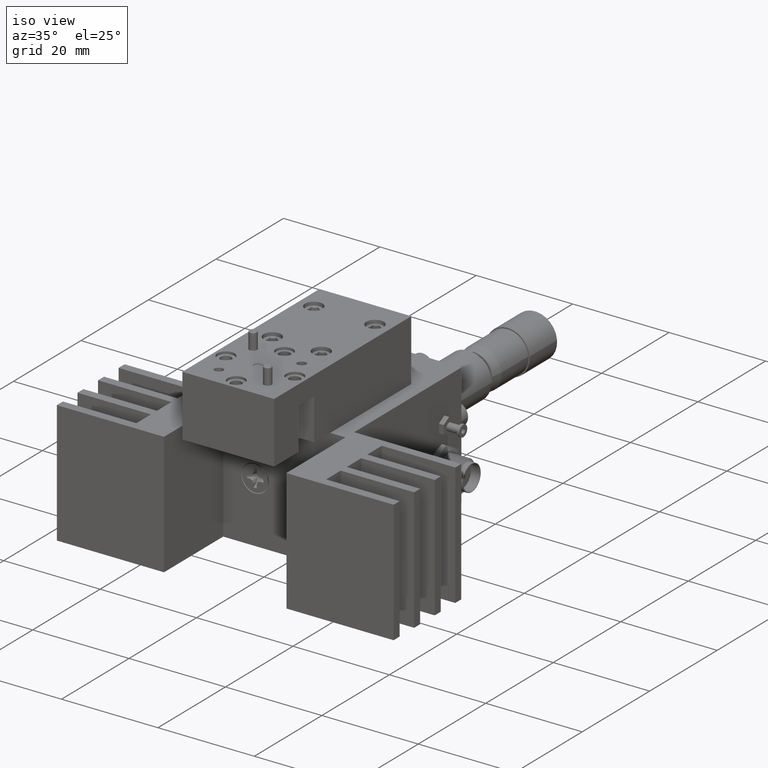
[diagram: clean part render]
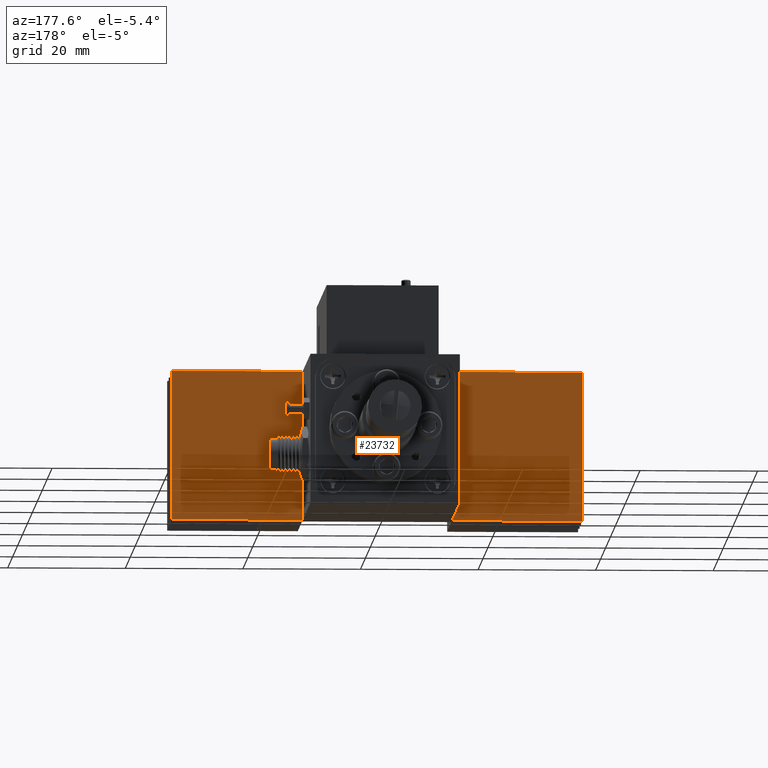
[diagram: tour spotlight — one face highlighted and labeled with its STEP entity id]
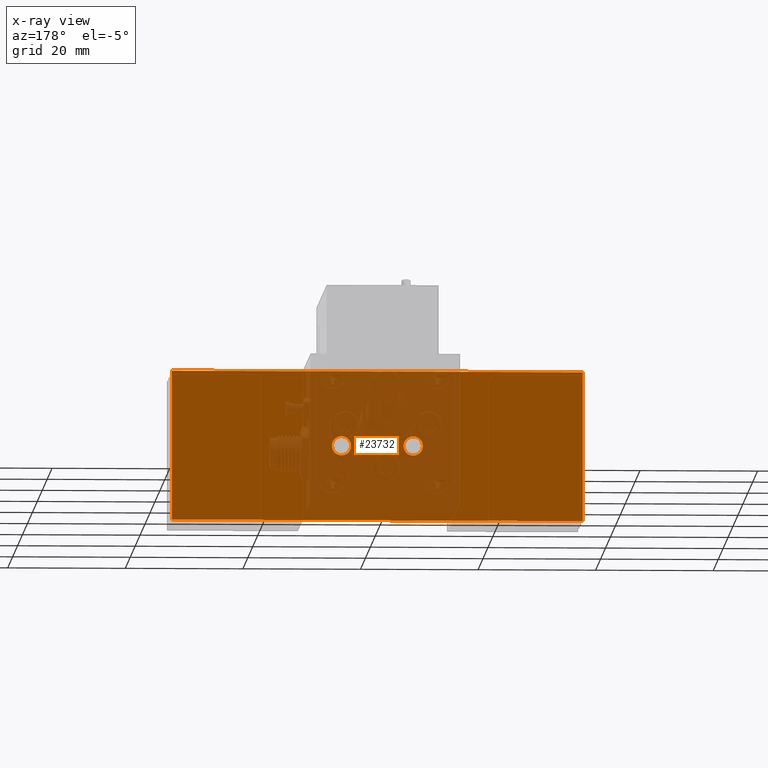
[diagram: x-ray of the same camera — body ghosted, this tour face saturated]
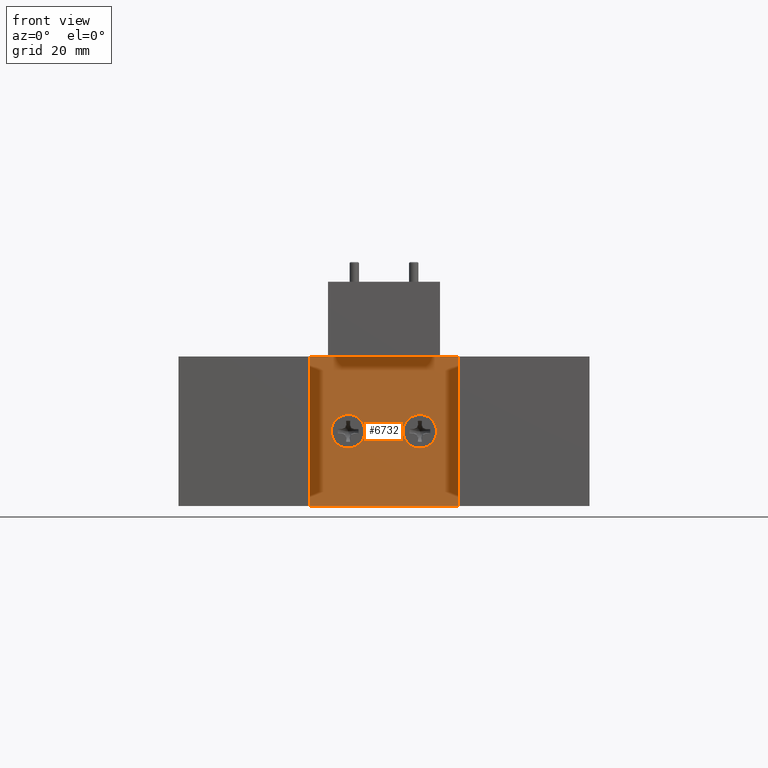
[diagram: tour spotlight — one face highlighted and labeled with its STEP entity id]
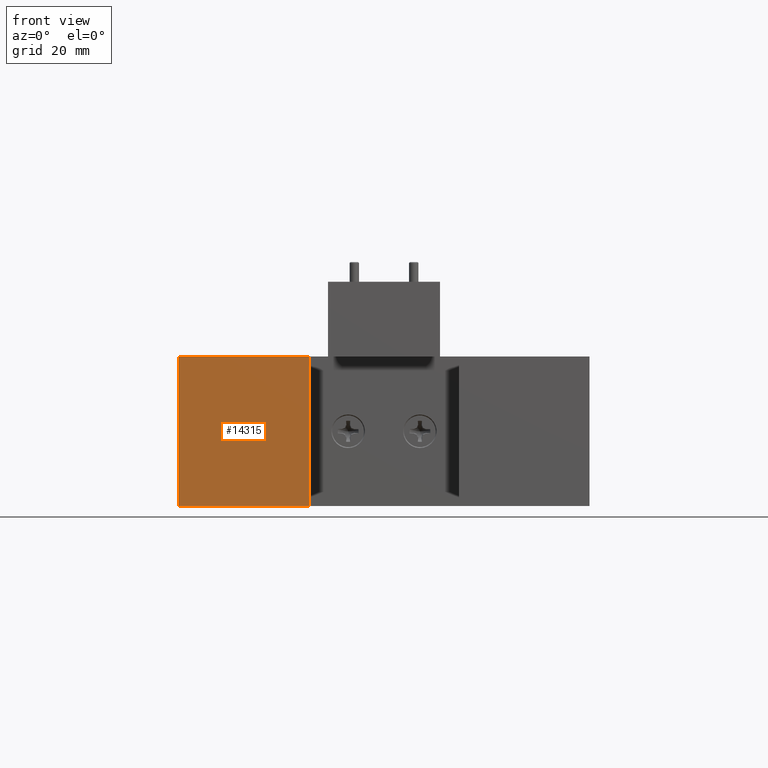
[diagram: tour spotlight — one face highlighted and labeled with its STEP entity id]
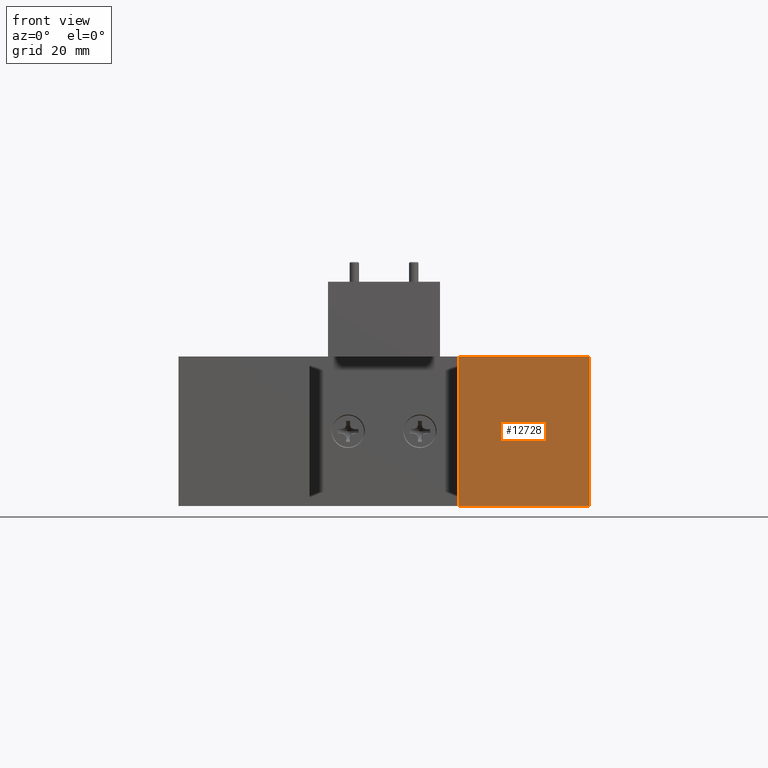
[diagram: tour spotlight — one face highlighted and labeled with its STEP entity id]
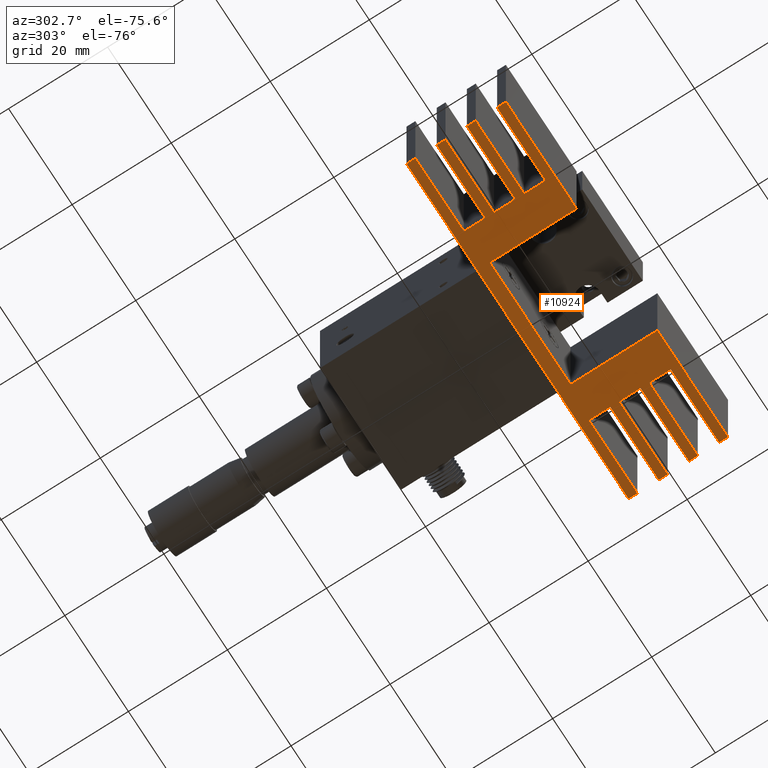
[diagram: tour spotlight — one face highlighted and labeled with its STEP entity id]
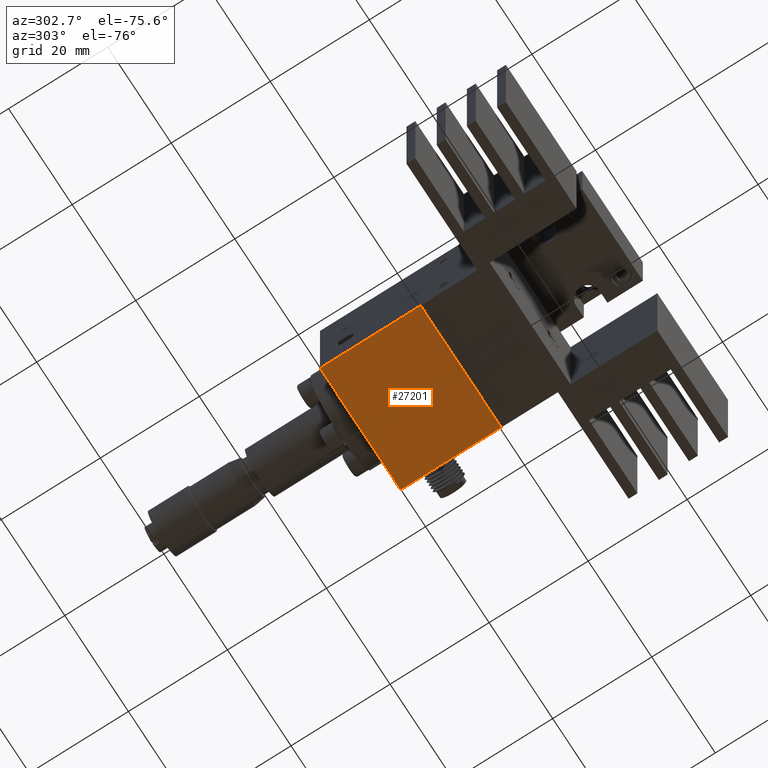
[diagram: tour spotlight — one face highlighted and labeled with its STEP entity id]
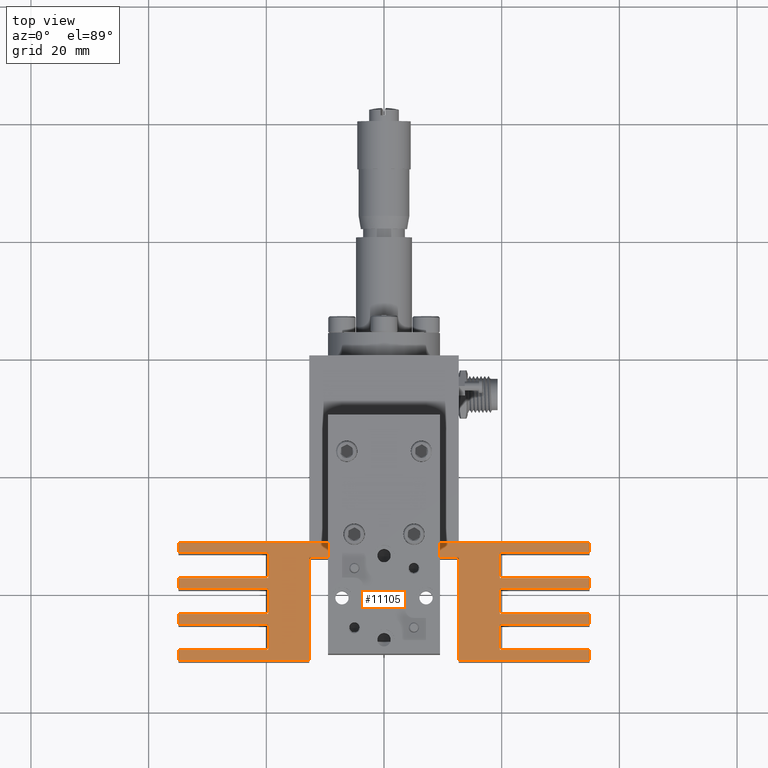
[diagram: tour spotlight — one face highlighted and labeled with its STEP entity id]
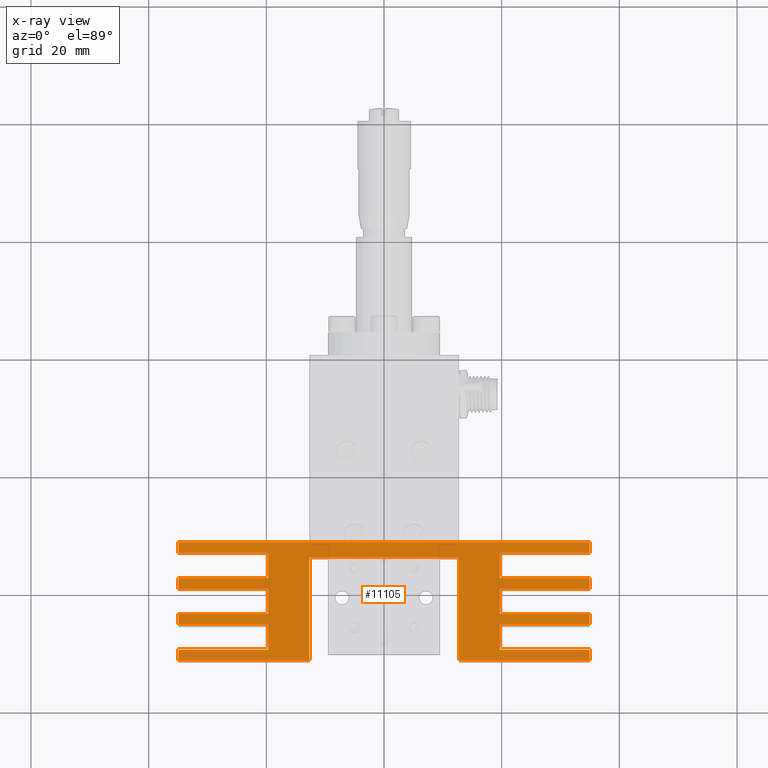
[diagram: x-ray of the same camera — body ghosted, this tour face saturated]
A machine part: a face-by-face anatomy tour. The part has 1316 B-rep faces; the first image is the clean iso view, then the 7 largest visible faces are spotlighted one at a time (largest first), each with its STEP entity span.

Face 1 — auxiliary view, entity #23732. An x-ray twin of the same camera follows (body ghosted, this face saturated) — the face is partly hidden behind the body. In plain terms, the highlighted planar face has unit normal (0, -1, 0).
Definition (entity closure, byte-faithful):
#547 = EDGE_LOOP ( 'NONE', ( #16414, #30792 ) ) ;
#2053 = DIRECTION ( 'NONE',  ( 0.0000000000000000000, 0.0000000000000000000, -1.000000000000000000 ) ) ;
#2690 = AXIS2_PLACEMENT_3D ( 'NONE', #38382, #32218, #4947 ) ;
#3336 = VERTEX_POINT ( 'NONE', #32297 ) ;
#3608 = EDGE_CURVE ( 'NONE', #3336, #22453, #25975, .T. ) ;
#4296 = CARTESIAN_POINT ( 'NONE',  ( 0.2399999999999999400, -0.4500000000000001200, -0.06424999999999997400 ) ) ;
#4709 = CARTESIAN_POINT ( 'NONE',  ( 1.375000000000000000, -0.4500000000000001200, 0.4999999999999997800 ) ) ;
#4710 = CARTESIAN_POINT ( 'NONE',  ( 1.375000000000000000, -0.4500000000000001200, 0.4999999999999997800 ) ) ;
#4947 = DIRECTION ( 'NONE',  ( 0.0000000000000000000, 0.0000000000000000000, -1.000000000000000000 ) ) ;
#5397 = EDGE_CURVE ( 'NONE', #37581, #21417, #28737, .T. ) ;
#5853 = ORIENTED_EDGE ( 'NONE', *, *, #28175, .T. ) ;
#5947 = CIRCLE ( 'NONE', #37008, 0.06424999999999997400 ) ;
#7236 = VERTEX_POINT ( 'NONE', #30982 ) ;
#7857 = VECTOR ( 'NONE', #29994, 39.37007874015748100 ) ;
#8078 = VECTOR ( 'NONE', #8263, 39.37007874015748100 ) ;
#8263 = DIRECTION ( 'NONE',  ( -1.000000000000000000, 0.0000000000000000000, 0.0000000000000000000 ) ) ;
#9018 = AXIS2_PLACEMENT_3D ( 'NONE', #14149, #20179, #2053 ) ;
#10081 = EDGE_LOOP ( 'NONE', ( #32975, #32938, #20411, #17659 ) ) ;
#10596 = PLANE ( 'NONE',  #11671 ) ;
#11671 = AXIS2_PLACEMENT_3D ( 'NONE', #4709, #31069, #37110 ) ;
#11697 = VERTEX_POINT ( 'NONE', #19626 ) ;
#12253 = EDGE_CURVE ( 'NONE', #21417, #23492, #31219, .T. ) ;
#12381 = CARTESIAN_POINT ( 'NONE',  ( -0.2400000000000000700, -0.4500000000000001200, 0.0000000000000000000 ) ) ;
#14149 = CARTESIAN_POINT ( 'NONE',  ( 0.2399999999999999400, -0.4500000000000001200, 0.0000000000000000000 ) ) ;
#15385 = EDGE_CURVE ( 'NONE', #36436, #7236, #21083, .T. ) ;
#16280 = LINE ( 'NONE', #29853, #7857 ) ;
#16414 = ORIENTED_EDGE ( 'NONE', *, *, #22384, .T. ) ;
#17659 = ORIENTED_EDGE ( 'NONE', *, *, #5397, .T. ) ;
#17870 = CARTESIAN_POINT ( 'NONE',  ( 1.375000000000000000, -0.4500000000000001200, -0.5000000000000002200 ) ) ;
#18509 = DIRECTION ( 'NONE',  ( 0.0000000000000000000, 0.0000000000000000000, -1.000000000000000000 ) ) ;
#18630 = DIRECTION ( 'NONE',  ( -0.0000000000000000000, -1.000000000000000000, -0.0000000000000000000 ) ) ;
#19626 = CARTESIAN_POINT ( 'NONE',  ( -1.375000000000000000, -0.4500000000000001200, 0.4999999999999997800 ) ) ;
#20179 = DIRECTION ( 'NONE',  ( -0.0000000000000000000, -1.000000000000000000, -0.0000000000000000000 ) ) ;
#20244 = EDGE_LOOP ( 'NONE', ( #36538, #5853 ) ) ;
#20411 = ORIENTED_EDGE ( 'NONE', *, *, #33429, .F. ) ;
#20783 = VECTOR ( 'NONE', #31688, 39.37007874015748100 ) ;
#21060 = CIRCLE ( 'NONE', #2690, 0.06424999999999997400 ) ;
#21083 = CIRCLE ( 'NONE', #9018, 0.06424999999999997400 ) ;
#21213 = LINE ( 'NONE', #37909, #8078 ) ;
#21417 = VERTEX_POINT ( 'NONE', #36840 ) ;
#22384 = EDGE_CURVE ( 'NONE', #22453, #3336, #5947, .T. ) ;
#22453 = VERTEX_POINT ( 'NONE', #31364 ) ;
#23492 = VERTEX_POINT ( 'NONE', #30281 ) ;
#23732 = ADVANCED_FACE ( 'NONE', ( #33966, #36796, #24098 ), #10596, .F. ) ;
#24098 = FACE_OUTER_BOUND ( 'NONE', #10081, .T. ) ;
#24278 = AXIS2_PLACEMENT_3D ( 'NONE', #36484, #18630, #27303 ) ;
#25975 = CIRCLE ( 'NONE', #24278, 0.06424999999999997400 ) ;
#27303 = DIRECTION ( 'NONE',  ( 0.0000000000000000000, 0.0000000000000000000, -1.000000000000000000 ) ) ;
#28175 = EDGE_CURVE ( 'NONE', #7236, #36436, #21060, .T. ) ;
#28737 = LINE ( 'NONE', #31292, #20783 ) ;
#29853 = CARTESIAN_POINT ( 'NONE',  ( -1.375000000000000000, -0.4500000000000001200, 0.4999999999999997800 ) ) ;
#29890 = EDGE_CURVE ( 'NONE', #11697, #23492, #16280, .T. ) ;
#29994 = DIRECTION ( 'NONE',  ( -0.0000000000000000000, -0.0000000000000000000, -1.000000000000000000 ) ) ;
#30281 = CARTESIAN_POINT ( 'NONE',  ( -1.375000000000000000, -0.4500000000000001200, -0.5000000000000002200 ) ) ;
#30772 = VECTOR ( 'NONE', #35865, 39.37007874015748100 ) ;
#30792 = ORIENTED_EDGE ( 'NONE', *, *, #3608, .T. ) ;
#30982 = CARTESIAN_POINT ( 'NONE',  ( 0.2399999999999999400, -0.4500000000000001200, 0.06424999999999997400 ) ) ;
#31069 = DIRECTION ( 'NONE',  ( 0.0000000000000000000, -1.000000000000000000, 0.0000000000000000000 ) ) ;
#31219 = LINE ( 'NONE', #17870, #30772 ) ;
#31292 = CARTESIAN_POINT ( 'NONE',  ( 1.375000000000000000, -0.4500000000000001200, 0.4999999999999997800 ) ) ;
#31364 = CARTESIAN_POINT ( 'NONE',  ( -0.2400000000000000700, -0.4500000000000001200, -0.06424999999999997400 ) ) ;
#31688 = DIRECTION ( 'NONE',  ( -0.0000000000000000000, -0.0000000000000000000, -1.000000000000000000 ) ) ;
#32218 = DIRECTION ( 'NONE',  ( -0.0000000000000000000, -1.000000000000000000, -0.0000000000000000000 ) ) ;
#32297 = CARTESIAN_POINT ( 'NONE',  ( -0.2400000000000000700, -0.4500000000000001200, 0.06424999999999997400 ) ) ;
#32938 = ORIENTED_EDGE ( 'NONE', *, *, #29890, .F. ) ;
#32975 = ORIENTED_EDGE ( 'NONE', *, *, #12253, .T. ) ;
#33348 = DIRECTION ( 'NONE',  ( -0.0000000000000000000, -1.000000000000000000, -0.0000000000000000000 ) ) ;
#33429 = EDGE_CURVE ( 'NONE', #37581, #11697, #21213, .T. ) ;
#33966 = FACE_BOUND ( 'NONE', #547, .T. ) ;
#35865 = DIRECTION ( 'NONE',  ( -1.000000000000000000, 0.0000000000000000000, 0.0000000000000000000 ) ) ;
#36436 = VERTEX_POINT ( 'NONE', #4296 ) ;
#36484 = CARTESIAN_POINT ( 'NONE',  ( -0.2400000000000000700, -0.4500000000000001200, 0.0000000000000000000 ) ) ;
#36538 = ORIENTED_EDGE ( 'NONE', *, *, #15385, .T. ) ;
#36796 = FACE_BOUND ( 'NONE', #20244, .T. ) ;
#36840 = CARTESIAN_POINT ( 'NONE',  ( 1.375000000000000000, -0.4500000000000001200, -0.5000000000000002200 ) ) ;
#37008 = AXIS2_PLACEMENT_3D ( 'NONE', #12381, #33348, #18509 ) ;
#37110 = DIRECTION ( 'NONE',  ( 0.0000000000000000000, -0.0000000000000000000, -1.000000000000000000 ) ) ;
#37581 = VERTEX_POINT ( 'NONE', #4710 ) ;
#37909 = CARTESIAN_POINT ( 'NONE',  ( 1.375000000000000000, -0.4500000000000001200, 0.4999999999999997800 ) ) ;
#38382 = CARTESIAN_POINT ( 'NONE',  ( 0.2399999999999999400, -0.4500000000000001200, 0.0000000000000000000 ) ) ;

Face 2 — front view, entity #6732. In plain terms, the highlighted planar face has unit normal (0, 1, 0).
Definition (entity closure, byte-faithful):
#245 = DIRECTION ( 'NONE',  ( -0.0000000000000000000, -1.000000000000000000, -0.0000000000000000000 ) ) ;
#1091 = DIRECTION ( 'NONE',  ( 0.0000000000000000000, 0.0000000000000000000, -1.000000000000000000 ) ) ;
#1494 = CARTESIAN_POINT ( 'NONE',  ( -0.5000000000000001100, -0.5499999999999998200, 0.4999999999999997800 ) ) ;
#2389 = VERTEX_POINT ( 'NONE', #13131 ) ;
#2492 = FACE_OUTER_BOUND ( 'NONE', #8991, .T. ) ;
#2752 = DIRECTION ( 'NONE',  ( 0.0000000000000000000, 0.0000000000000000000, -1.000000000000000000 ) ) ;
#3248 = CARTESIAN_POINT ( 'NONE',  ( -0.5000000000000001100, -0.5499999999999998200, 0.4999999999999997800 ) ) ;
#3273 = DIRECTION ( 'NONE',  ( 0.0000000000000000000, 0.0000000000000000000, -1.000000000000000000 ) ) ;
#4600 = AXIS2_PLACEMENT_3D ( 'NONE', #27136, #245, #3273 ) ;
#5297 = CARTESIAN_POINT ( 'NONE',  ( 0.2399999999999999400, -0.5499999999999998200, -0.1124999999999999900 ) ) ;
#5977 = VERTEX_POINT ( 'NONE', #5297 ) ;
#6732 = ADVANCED_FACE ( 'NONE', ( #35361, #33033, #2492 ), #10438, .F. ) ;
#6742 = CARTESIAN_POINT ( 'NONE',  ( -0.2400000000000000700, -0.5499999999999998200, -0.1124999999999999900 ) ) ;
#6868 = LINE ( 'NONE', #29917, #19561 ) ;
#7041 = DIRECTION ( 'NONE',  ( -0.0000000000000000000, -0.0000000000000000000, -1.000000000000000000 ) ) ;
#8294 = CARTESIAN_POINT ( 'NONE',  ( -0.5000000000000001100, -0.5499999999999998200, -0.5000000000000002200 ) ) ;
#8417 = DIRECTION ( 'NONE',  ( -0.0000000000000000000, -1.000000000000000000, -0.0000000000000000000 ) ) ;
#8991 = EDGE_LOOP ( 'NONE', ( #30388, #22903, #18290, #35257 ) ) ;
#10438 = PLANE ( 'NONE',  #32694 ) ;
#10554 = LINE ( 'NONE', #3248, #31210 ) ;
#11722 = EDGE_CURVE ( 'NONE', #18471, #34441, #12056, .T. ) ;
#12056 = LINE ( 'NONE', #37207, #13939 ) ;
#12105 = DIRECTION ( 'NONE',  ( -0.0000000000000000000, -1.000000000000000000, -0.0000000000000000000 ) ) ;
#12530 = EDGE_CURVE ( 'NONE', #2389, #5977, #14810, .T. ) ;
#12657 = DIRECTION ( 'NONE',  ( -0.0000000000000000000, -1.000000000000000000, -0.0000000000000000000 ) ) ;
#12953 = ORIENTED_EDGE ( 'NONE', *, *, #23528, .F. ) ;
#13131 = CARTESIAN_POINT ( 'NONE',  ( 0.2399999999999999400, -0.5499999999999998200, 0.1124999999999999900 ) ) ;
#13939 = VECTOR ( 'NONE', #7041, 39.37007874015748100 ) ;
#14143 = CARTESIAN_POINT ( 'NONE',  ( -0.2400000000000000700, -0.5499999999999998200, 0.1124999999999999900 ) ) ;
#14578 = CARTESIAN_POINT ( 'NONE',  ( -0.2400000000000000700, -0.5499999999999998200, 0.0000000000000000000 ) ) ;
#14810 = CIRCLE ( 'NONE', #24818, 0.1124999999999999900 ) ;
#16786 = DIRECTION ( 'NONE',  ( 1.000000000000000000, 0.0000000000000000000, 0.0000000000000000000 ) ) ;
#17485 = ORIENTED_EDGE ( 'NONE', *, *, #30785, .F. ) ;
#18106 = DIRECTION ( 'NONE',  ( 0.0000000000000000000, 0.0000000000000000000, -1.000000000000000000 ) ) ;
#18290 = ORIENTED_EDGE ( 'NONE', *, *, #31470, .F. ) ;
#18471 = VERTEX_POINT ( 'NONE', #25303 ) ;
#18569 = CIRCLE ( 'NONE', #31431, 0.1124999999999999900 ) ;
#19175 = EDGE_CURVE ( 'NONE', #29749, #20804, #20847, .T. ) ;
#19488 = DIRECTION ( 'NONE',  ( 0.0000000000000000000, -0.0000000000000000000, 1.000000000000000000 ) ) ;
#19557 = CARTESIAN_POINT ( 'NONE',  ( 0.4999999999999999400, -0.5499999999999998200, -0.5000000000000002200 ) ) ;
#19561 = VECTOR ( 'NONE', #26910, 39.37007874015748100 ) ;
#19989 = LINE ( 'NONE', #28727, #28869 ) ;
#20804 = VERTEX_POINT ( 'NONE', #6742 ) ;
#20847 = CIRCLE ( 'NONE', #36320, 0.1124999999999999900 ) ;
#22169 = EDGE_CURVE ( 'NONE', #38736, #22619, #6868, .T. ) ;
#22258 = CIRCLE ( 'NONE', #4600, 0.1124999999999999900 ) ;
#22619 = VERTEX_POINT ( 'NONE', #8294 ) ;
#22903 = ORIENTED_EDGE ( 'NONE', *, *, #11722, .F. ) ;
#23528 = EDGE_CURVE ( 'NONE', #20804, #29749, #22258, .T. ) ;
#24818 = AXIS2_PLACEMENT_3D ( 'NONE', #33750, #12657, #1091 ) ;
#25303 = CARTESIAN_POINT ( 'NONE',  ( 0.4999999999999999400, -0.5499999999999998200, 0.4999999999999997800 ) ) ;
#26902 = CARTESIAN_POINT ( 'NONE',  ( 0.2399999999999999400, -0.5499999999999998200, 0.0000000000000000000 ) ) ;
#26910 = DIRECTION ( 'NONE',  ( -0.0000000000000000000, -0.0000000000000000000, -1.000000000000000000 ) ) ;
#27136 = CARTESIAN_POINT ( 'NONE',  ( -0.2400000000000000700, -0.5499999999999998200, 0.0000000000000000000 ) ) ;
#28727 = CARTESIAN_POINT ( 'NONE',  ( -0.5000000000000001100, -0.5499999999999998200, -0.5000000000000002200 ) ) ;
#28869 = VECTOR ( 'NONE', #16786, 39.37007874015748100 ) ;
#29270 = CARTESIAN_POINT ( 'NONE',  ( -0.5000000000000001100, -0.5499999999999998200, 0.4999999999999997800 ) ) ;
#29749 = VERTEX_POINT ( 'NONE', #14143 ) ;
#29917 = CARTESIAN_POINT ( 'NONE',  ( -0.5000000000000001100, -0.5499999999999998200, 0.4999999999999997800 ) ) ;
#30388 = ORIENTED_EDGE ( 'NONE', *, *, #36979, .T. ) ;
#30785 = EDGE_CURVE ( 'NONE', #5977, #2389, #18569, .T. ) ;
#31210 = VECTOR ( 'NONE', #33157, 39.37007874015748100 ) ;
#31412 = DIRECTION ( 'NONE',  ( 0.0000000000000000000, 1.000000000000000000, 0.0000000000000000000 ) ) ;
#31431 = AXIS2_PLACEMENT_3D ( 'NONE', #26902, #12105, #18106 ) ;
#31470 = EDGE_CURVE ( 'NONE', #38736, #18471, #10554, .T. ) ;
#32694 = AXIS2_PLACEMENT_3D ( 'NONE', #1494, #31412, #19488 ) ;
#33033 = FACE_BOUND ( 'NONE', #37968, .T. ) ;
#33150 = EDGE_LOOP ( 'NONE', ( #12953, #37950 ) ) ;
#33157 = DIRECTION ( 'NONE',  ( 1.000000000000000000, 0.0000000000000000000, 0.0000000000000000000 ) ) ;
#33750 = CARTESIAN_POINT ( 'NONE',  ( 0.2399999999999999400, -0.5499999999999998200, 0.0000000000000000000 ) ) ;
#34441 = VERTEX_POINT ( 'NONE', #19557 ) ;
#35257 = ORIENTED_EDGE ( 'NONE', *, *, #22169, .T. ) ;
#35361 = FACE_BOUND ( 'NONE', #33150, .T. ) ;
#36315 = ORIENTED_EDGE ( 'NONE', *, *, #12530, .F. ) ;
#36320 = AXIS2_PLACEMENT_3D ( 'NONE', #14578, #8417, #2752 ) ;
#36979 = EDGE_CURVE ( 'NONE', #22619, #34441, #19989, .T. ) ;
#37207 = CARTESIAN_POINT ( 'NONE',  ( 0.4999999999999999400, -0.5499999999999998200, 0.4999999999999997800 ) ) ;
#37950 = ORIENTED_EDGE ( 'NONE', *, *, #19175, .F. ) ;
#37968 = EDGE_LOOP ( 'NONE', ( #17485, #36315 ) ) ;
#38736 = VERTEX_POINT ( 'NONE', #29270 ) ;

Face 3 — front view, entity #14315. In plain terms, the highlighted planar face has unit normal (0, 1, 0).
Definition (entity closure, byte-faithful):
#529 = DIRECTION ( 'NONE',  ( -0.0000000000000000000, -0.0000000000000000000, -1.000000000000000000 ) ) ;
#945 = CARTESIAN_POINT ( 'NONE',  ( -1.375000000000000400, -1.240000000000000200, -0.5000000000000002200 ) ) ;
#1802 = CARTESIAN_POINT ( 'NONE',  ( -1.375000000000000400, -1.240000000000000200, -0.5000000000000002200 ) ) ;
#1850 = VERTEX_POINT ( 'NONE', #36012 ) ;
#2187 = ORIENTED_EDGE ( 'NONE', *, *, #27782, .F. ) ;
#2410 = LINE ( 'NONE', #1802, #31082 ) ;
#3196 = AXIS2_PLACEMENT_3D ( 'NONE', #34976, #20037, #23032 ) ;
#3372 = ORIENTED_EDGE ( 'NONE', *, *, #24927, .T. ) ;
#3401 = DIRECTION ( 'NONE',  ( 1.000000000000000000, 0.0000000000000000000, 0.0000000000000000000 ) ) ;
#6566 = CARTESIAN_POINT ( 'NONE',  ( -1.375000000000000400, -1.240000000000000200, 0.4999999999999997800 ) ) ;
#7800 = EDGE_CURVE ( 'NONE', #17934, #16742, #2410, .T. ) ;
#10362 = FACE_OUTER_BOUND ( 'NONE', #19911, .T. ) ;
#14086 = LINE ( 'NONE', #6566, #20177 ) ;
#14315 = ADVANCED_FACE ( 'NONE', ( #10362 ), #28921, .F. ) ;
#16515 = VERTEX_POINT ( 'NONE', #35014 ) ;
#16742 = VERTEX_POINT ( 'NONE', #27800 ) ;
#17934 = VERTEX_POINT ( 'NONE', #945 ) ;
#18862 = LINE ( 'NONE', #27152, #23079 ) ;
#19911 = EDGE_LOOP ( 'NONE', ( #33370, #30009, #2187, #3372 ) ) ;
#20037 = DIRECTION ( 'NONE',  ( 0.0000000000000000000, 1.000000000000000000, 0.0000000000000000000 ) ) ;
#20177 = VECTOR ( 'NONE', #3401, 39.37007874015748100 ) ;
#23032 = DIRECTION ( 'NONE',  ( 0.0000000000000000000, -0.0000000000000000000, 1.000000000000000000 ) ) ;
#23079 = VECTOR ( 'NONE', #529, 39.37007874015748100 ) ;
#23345 = VECTOR ( 'NONE', #37744, 39.37007874015748100 ) ;
#24927 = EDGE_CURVE ( 'NONE', #16515, #17934, #18862, .T. ) ;
#27152 = CARTESIAN_POINT ( 'NONE',  ( -1.375000000000000400, -1.240000000000000200, 0.4999999999999997800 ) ) ;
#27782 = EDGE_CURVE ( 'NONE', #16515, #1850, #14086, .T. ) ;
#27800 = CARTESIAN_POINT ( 'NONE',  ( -0.5000000000000001100, -1.240000000000000200, -0.5000000000000002200 ) ) ;
#28921 = PLANE ( 'NONE',  #3196 ) ;
#29790 = EDGE_CURVE ( 'NONE', #1850, #16742, #31335, .T. ) ;
#30009 = ORIENTED_EDGE ( 'NONE', *, *, #29790, .F. ) ;
#31082 = VECTOR ( 'NONE', #31975, 39.37007874015748100 ) ;
#31335 = LINE ( 'NONE', #38254, #23345 ) ;
#31975 = DIRECTION ( 'NONE',  ( 1.000000000000000000, 0.0000000000000000000, 0.0000000000000000000 ) ) ;
#33370 = ORIENTED_EDGE ( 'NONE', *, *, #7800, .T. ) ;
#34976 = CARTESIAN_POINT ( 'NONE',  ( -1.375000000000000400, -1.240000000000000200, 0.4999999999999997800 ) ) ;
#35014 = CARTESIAN_POINT ( 'NONE',  ( -1.375000000000000400, -1.240000000000000200, 0.4999999999999997800 ) ) ;
#36012 = CARTESIAN_POINT ( 'NONE',  ( -0.5000000000000001100, -1.240000000000000200, 0.4999999999999997800 ) ) ;
#37744 = DIRECTION ( 'NONE',  ( -0.0000000000000000000, -0.0000000000000000000, -1.000000000000000000 ) ) ;
#38254 = CARTESIAN_POINT ( 'NONE',  ( -0.5000000000000001100, -1.240000000000000200, 0.4999999999999997800 ) ) ;

Face 4 — front view, entity #12728. In plain terms, the highlighted planar face has unit normal (0, 1, -0).
Definition (entity closure, byte-faithful):
#1451 = VERTEX_POINT ( 'NONE', #31739 ) ;
#1898 = EDGE_LOOP ( 'NONE', ( #7941, #26114, #10686, #38179 ) ) ;
#2776 = VERTEX_POINT ( 'NONE', #21615 ) ;
#3927 = LINE ( 'NONE', #32179, #30669 ) ;
#3928 = VECTOR ( 'NONE', #32050, 39.37007874015748100 ) ;
#4139 = EDGE_CURVE ( 'NONE', #1451, #2776, #3927, .T. ) ;
#5911 = EDGE_CURVE ( 'NONE', #37438, #17332, #15579, .T. ) ;
#7941 = ORIENTED_EDGE ( 'NONE', *, *, #5911, .T. ) ;
#8418 = DIRECTION ( 'NONE',  ( 0.0000000000000000000, 0.0000000000000000000, 1.000000000000000000 ) ) ;
#9528 = CARTESIAN_POINT ( 'NONE',  ( 1.375000000000000400, -1.240000000000000200, 0.4999999999999997800 ) ) ;
#10282 = DIRECTION ( 'NONE',  ( -0.0000000000000000000, -0.0000000000000000000, -1.000000000000000000 ) ) ;
#10520 = EDGE_CURVE ( 'NONE', #1451, #37438, #18690, .T. ) ;
#10686 = ORIENTED_EDGE ( 'NONE', *, *, #4139, .F. ) ;
#10736 = AXIS2_PLACEMENT_3D ( 'NONE', #17043, #38054, #8418 ) ;
#10914 = PLANE ( 'NONE',  #10736 ) ;
#12313 = VECTOR ( 'NONE', #34410, 39.37007874015748100 ) ;
#12728 = ADVANCED_FACE ( 'NONE', ( #34944 ), #10914, .F. ) ;
#12845 = LINE ( 'NONE', #9528, #3928 ) ;
#12909 = CARTESIAN_POINT ( 'NONE',  ( 0.4999999999999999400, -1.240000000000000200, 0.4999999999999997800 ) ) ;
#15579 = LINE ( 'NONE', #16563, #12313 ) ;
#16563 = CARTESIAN_POINT ( 'NONE',  ( 1.375000000000000400, -1.240000000000000200, -0.5000000000000002200 ) ) ;
#17043 = CARTESIAN_POINT ( 'NONE',  ( 1.375000000000000400, -1.240000000000000200, 0.4999999999999997800 ) ) ;
#17332 = VERTEX_POINT ( 'NONE', #33529 ) ;
#18690 = LINE ( 'NONE', #12909, #38881 ) ;
#20498 = DIRECTION ( 'NONE',  ( 1.000000000000000000, -0.0000000000000000000, -0.0000000000000000000 ) ) ;
#21615 = CARTESIAN_POINT ( 'NONE',  ( 1.375000000000000400, -1.240000000000000200, 0.4999999999999997800 ) ) ;
#26114 = ORIENTED_EDGE ( 'NONE', *, *, #38593, .F. ) ;
#30669 = VECTOR ( 'NONE', #20498, 39.37007874015748100 ) ;
#31739 = CARTESIAN_POINT ( 'NONE',  ( 0.4999999999999999400, -1.240000000000000200, 0.4999999999999997800 ) ) ;
#32050 = DIRECTION ( 'NONE',  ( -0.0000000000000000000, -0.0000000000000000000, -1.000000000000000000 ) ) ;
#32179 = CARTESIAN_POINT ( 'NONE',  ( 1.375000000000000400, -1.240000000000000200, 0.4999999999999997800 ) ) ;
#33529 = CARTESIAN_POINT ( 'NONE',  ( 1.375000000000000400, -1.240000000000000200, -0.5000000000000002200 ) ) ;
#34342 = CARTESIAN_POINT ( 'NONE',  ( 0.4999999999999999400, -1.240000000000000200, -0.5000000000000002200 ) ) ;
#34410 = DIRECTION ( 'NONE',  ( 1.000000000000000000, -0.0000000000000000000, -0.0000000000000000000 ) ) ;
#34944 = FACE_OUTER_BOUND ( 'NONE', #1898, .T. ) ;
#37438 = VERTEX_POINT ( 'NONE', #34342 ) ;
#38054 = DIRECTION ( 'NONE',  ( 0.0000000000000000000, 1.000000000000000000, -0.0000000000000000000 ) ) ;
#38179 = ORIENTED_EDGE ( 'NONE', *, *, #10520, .T. ) ;
#38593 = EDGE_CURVE ( 'NONE', #2776, #17332, #12845, .T. ) ;
#38881 = VECTOR ( 'NONE', #10282, 39.37007874015748100 ) ;

Face 5 — auxiliary view, entity #10924. In plain terms, the highlighted planar face has unit normal (0, 0, 1).
Definition (entity closure, byte-faithful):
#118 = CARTESIAN_POINT ( 'NONE',  ( -1.375000000000000000, -0.6900000000000000600, -0.5000000000000002200 ) ) ;
#314 = LINE ( 'NONE', #3077, #9721 ) ;
#323 = VERTEX_POINT ( 'NONE', #523 ) ;
#523 = CARTESIAN_POINT ( 'NONE',  ( -0.7750000000000003600, -0.6900000000000000600, -0.5000000000000002200 ) ) ;
#612 = LINE ( 'NONE', #15555, #38636 ) ;
#764 = LINE ( 'NONE', #30196, #37852 ) ;
#804 = CARTESIAN_POINT ( 'NONE',  ( -0.7750000000000003600, -0.5199999999999999100, -0.5000000000000002200 ) ) ;
#945 = CARTESIAN_POINT ( 'NONE',  ( -1.375000000000000400, -1.240000000000000200, -0.5000000000000002200 ) ) ;
#994 = VECTOR ( 'NONE', #20316, 39.37007874015748100 ) ;
#1354 = VERTEX_POINT ( 'NONE', #21796 ) ;
#1802 = CARTESIAN_POINT ( 'NONE',  ( -1.375000000000000400, -1.240000000000000200, -0.5000000000000002200 ) ) ;
#1858 = EDGE_CURVE ( 'NONE', #7281, #17934, #314, .T. ) ;
#2103 = DIRECTION ( 'NONE',  ( -0.0000000000000000000, -1.000000000000000000, -0.0000000000000000000 ) ) ;
#2158 = ORIENTED_EDGE ( 'NONE', *, *, #15149, .F. ) ;
#2295 = VECTOR ( 'NONE', #30105, 39.37007874015748100 ) ;
#2405 = LINE ( 'NONE', #23449, #994 ) ;
#2410 = LINE ( 'NONE', #1802, #31082 ) ;
#2461 = CARTESIAN_POINT ( 'NONE',  ( 1.375000000000000000, -0.6900000000000000600, -0.5000000000000002200 ) ) ;
#2803 = CARTESIAN_POINT ( 'NONE',  ( -0.7750000000000003600, -0.5199999999999999100, -0.5000000000000002200 ) ) ;
#2836 = ORIENTED_EDGE ( 'NONE', *, *, #13681, .F. ) ;
#2854 = DIRECTION ( 'NONE',  ( -8.034847040189001300E-016, -1.000000000000000000, 0.0000000000000000000 ) ) ;
#2893 = DIRECTION ( 'NONE',  ( 1.000000000000000000, 0.0000000000000000000, -0.0000000000000000000 ) ) ;
#3077 = CARTESIAN_POINT ( 'NONE',  ( -1.375000000000000200, -1.170000000000000200, -0.5000000000000002200 ) ) ;
#3238 = CARTESIAN_POINT ( 'NONE',  ( 1.375000000000000000, -1.000000000000000000, -0.5000000000000002200 ) ) ;
#3403 = CARTESIAN_POINT ( 'NONE',  ( 1.375000000000000200, -1.170000000000000200, -0.5000000000000002200 ) ) ;
#3506 = DIRECTION ( 'NONE',  ( -1.000000000000000000, 0.0000000000000000000, 0.0000000000000000000 ) ) ;
#4194 = LINE ( 'NONE', #7631, #22473 ) ;
#4500 = DIRECTION ( 'NONE',  ( -1.000000000000000000, -1.138269997360110200E-016, -0.0000000000000000000 ) ) ;
#4632 = VERTEX_POINT ( 'NONE', #27017 ) ;
#5343 = CARTESIAN_POINT ( 'NONE',  ( -1.375000000000000000, -0.6900000000000000600, -0.5000000000000002200 ) ) ;
#5400 = ORIENTED_EDGE ( 'NONE', *, *, #28168, .F. ) ;
#5532 = CARTESIAN_POINT ( 'NONE',  ( -1.375000000000000000, -0.7599999999999997900, -0.5000000000000002200 ) ) ;
#5739 = DIRECTION ( 'NONE',  ( -1.000000000000000000, -0.0000000000000000000, -0.0000000000000000000 ) ) ;
#5911 = EDGE_CURVE ( 'NONE', #37438, #17332, #15579, .T. ) ;
#6513 = DIRECTION ( 'NONE',  ( -1.000000000000000000, -0.0000000000000000000, -0.0000000000000000000 ) ) ;
#6529 = LINE ( 'NONE', #25634, #33266 ) ;
#6549 = VECTOR ( 'NONE', #5739, 39.37007874015748100 ) ;
#6561 = LINE ( 'NONE', #30368, #2295 ) ;
#6761 = ORIENTED_EDGE ( 'NONE', *, *, #36074, .F. ) ;
#6775 = CARTESIAN_POINT ( 'NONE',  ( -1.375000000000000000, -0.9299999999999999400, -0.5000000000000002200 ) ) ;
#6782 = CARTESIAN_POINT ( 'NONE',  ( -0.7750000000000003600, -0.6900000000000000600, -0.5000000000000002200 ) ) ;
#7131 = ORIENTED_EDGE ( 'NONE', *, *, #25370, .F. ) ;
#7261 = VECTOR ( 'NONE', #22906, 39.37007874015748100 ) ;
#7281 = VERTEX_POINT ( 'NONE', #7501 ) ;
#7501 = CARTESIAN_POINT ( 'NONE',  ( -1.375000000000000200, -1.170000000000000200, -0.5000000000000002200 ) ) ;
#7590 = LINE ( 'NONE', #20832, #16935 ) ;
#7631 = CARTESIAN_POINT ( 'NONE',  ( 0.7750000000000000200, -0.9299999999999999400, -0.5000000000000002200 ) ) ;
#7800 = EDGE_CURVE ( 'NONE', #17934, #16742, #2410, .T. ) ;
#8195 = CARTESIAN_POINT ( 'NONE',  ( 0.7750000000000000200, -0.5199999999999999100, -0.5000000000000002200 ) ) ;
#8294 = CARTESIAN_POINT ( 'NONE',  ( -0.5000000000000001100, -0.5499999999999998200, -0.5000000000000002200 ) ) ;
#8530 = VERTEX_POINT ( 'NONE', #12979 ) ;
#8714 = VERTEX_POINT ( 'NONE', #22281 ) ;
#8939 = CARTESIAN_POINT ( 'NONE',  ( -6.829619984160658000E-017, -0.4499999999999998400, -0.5000000000000002200 ) ) ;
#8989 = VERTEX_POINT ( 'NONE', #21082 ) ;
#9028 = EDGE_CURVE ( 'NONE', #35802, #33812, #6561, .T. ) ;
#9072 = LINE ( 'NONE', #21301, #34880 ) ;
#9248 = EDGE_CURVE ( 'NONE', #11818, #35360, #34695, .T. ) ;
#9479 = ORIENTED_EDGE ( 'NONE', *, *, #30084, .F. ) ;
#9721 = VECTOR ( 'NONE', #30351, 39.37007874015748100 ) ;
#9723 = LINE ( 'NONE', #22834, #16718 ) ;
#10056 = EDGE_CURVE ( 'NONE', #28257, #18703, #6529, .T. ) ;
#10317 = VECTOR ( 'NONE', #20526, 39.37007874015748100 ) ;
#10397 = VECTOR ( 'NONE', #13201, 39.37007874015748100 ) ;
#10475 = VERTEX_POINT ( 'NONE', #36786 ) ;
#10924 = ADVANCED_FACE ( 'NONE', ( #29892 ), #38846, .F. ) ;
#11002 = DIRECTION ( 'NONE',  ( -0.0000000000000000000, 1.000000000000000000, -0.0000000000000000000 ) ) ;
#11816 = DIRECTION ( 'NONE',  ( 1.000000000000000000, 0.0000000000000000000, 0.0000000000000000000 ) ) ;
#11818 = VERTEX_POINT ( 'NONE', #26303 ) ;
#11830 = EDGE_LOOP ( 'NONE', ( #9479, #19788, #34419, #29012, #34560, #20925, #15841, #15852, #35922, #23594, #26697, #2158, #30984, #30565, #14951, #27852, #6761, #27253, #28785, #34259, #14567, #18535, #7131, #17406, #2836, #22323, #38628, #13558, #5400, #29635, #14103, #26534 ) ) ;
#11963 = LINE ( 'NONE', #37945, #34939 ) ;
#12253 = EDGE_CURVE ( 'NONE', #21417, #23492, #31219, .T. ) ;
#12313 = VECTOR ( 'NONE', #34410, 39.37007874015748100 ) ;
#12770 = LINE ( 'NONE', #6782, #18844 ) ;
#12853 = DIRECTION ( 'NONE',  ( -3.902639990948943500E-015, 1.000000000000000000, -0.0000000000000000000 ) ) ;
#12939 = DIRECTION ( 'NONE',  ( -1.000000000000000000, 0.0000000000000000000, 0.0000000000000000000 ) ) ;
#12979 = CARTESIAN_POINT ( 'NONE',  ( 1.375000000000000000, -0.7599999999999997900, -0.5000000000000002200 ) ) ;
#13201 = DIRECTION ( 'NONE',  ( 0.0000000000000000000, -1.000000000000000000, 0.0000000000000000000 ) ) ;
#13498 = EDGE_CURVE ( 'NONE', #323, #27818, #12770, .T. ) ;
#13558 = ORIENTED_EDGE ( 'NONE', *, *, #21140, .F. ) ;
#13681 = EDGE_CURVE ( 'NONE', #35360, #8989, #18339, .T. ) ;
#14103 = ORIENTED_EDGE ( 'NONE', *, *, #38957, .F. ) ;
#14297 = VECTOR ( 'NONE', #25214, 39.37007874015748100 ) ;
#14567 = ORIENTED_EDGE ( 'NONE', *, *, #1858, .F. ) ;
#14871 = CARTESIAN_POINT ( 'NONE',  ( 1.375000000000000000, -0.7599999999999997900, -0.5000000000000002200 ) ) ;
#14951 = ORIENTED_EDGE ( 'NONE', *, *, #21313, .F. ) ;
#14973 = VECTOR ( 'NONE', #21460, 39.37007874015748100 ) ;
#15009 = VERTEX_POINT ( 'NONE', #5532 ) ;
#15066 = VERTEX_POINT ( 'NONE', #33574 ) ;
#15149 = EDGE_CURVE ( 'NONE', #33812, #25575, #27169, .T. ) ;
#15257 = DIRECTION ( 'NONE',  ( -0.0000000000000000000, 1.000000000000000000, -0.0000000000000000000 ) ) ;
#15275 = VECTOR ( 'NONE', #17287, 39.37007874015748100 ) ;
#15555 = CARTESIAN_POINT ( 'NONE',  ( 0.7750000000000003600, -1.170000000000000200, -0.5000000000000002200 ) ) ;
#15579 = LINE ( 'NONE', #16563, #12313 ) ;
#15705 = CARTESIAN_POINT ( 'NONE',  ( -0.7750000000000003600, -1.170000000000000200, -0.5000000000000002200 ) ) ;
#15841 = ORIENTED_EDGE ( 'NONE', *, *, #32387, .F. ) ;
#15852 = ORIENTED_EDGE ( 'NONE', *, *, #19766, .F. ) ;
#15908 = LINE ( 'NONE', #29567, #6549 ) ;
#16356 = VECTOR ( 'NONE', #11816, 39.37007874015748100 ) ;
#16435 = DIRECTION ( 'NONE',  ( 0.0000000000000000000, 1.000000000000000000, 0.0000000000000000000 ) ) ;
#16563 = CARTESIAN_POINT ( 'NONE',  ( 1.375000000000000400, -1.240000000000000200, -0.5000000000000002200 ) ) ;
#16718 = VECTOR ( 'NONE', #2103, 39.37007874015748100 ) ;
#16742 = VERTEX_POINT ( 'NONE', #27800 ) ;
#16786 = DIRECTION ( 'NONE',  ( 1.000000000000000000, 0.0000000000000000000, 0.0000000000000000000 ) ) ;
#16935 = VECTOR ( 'NONE', #2854, 39.37007874015748100 ) ;
#17287 = DIRECTION ( 'NONE',  ( -0.0000000000000000000, 1.000000000000000000, -0.0000000000000000000 ) ) ;
#17332 = VERTEX_POINT ( 'NONE', #33529 ) ;
#17389 = LINE ( 'NONE', #15705, #24437 ) ;
#17406 = ORIENTED_EDGE ( 'NONE', *, *, #19817, .F. ) ;
#17424 = CARTESIAN_POINT ( 'NONE',  ( 1.375000000000000000, -0.9299999999999999400, -0.5000000000000002200 ) ) ;
#17459 = VECTOR ( 'NONE', #27824, 39.37007874015748100 ) ;
#17629 = VERTEX_POINT ( 'NONE', #8195 ) ;
#17717 = EDGE_CURVE ( 'NONE', #18391, #17629, #764, .T. ) ;
#17866 = DIRECTION ( 'NONE',  ( 1.000000000000000000, -0.0000000000000000000, -0.0000000000000000000 ) ) ;
#17870 = CARTESIAN_POINT ( 'NONE',  ( 1.375000000000000000, -0.4500000000000001200, -0.5000000000000002200 ) ) ;
#17934 = VERTEX_POINT ( 'NONE', #945 ) ;
#18289 = EDGE_CURVE ( 'NONE', #25575, #28225, #19986, .T. ) ;
#18339 = LINE ( 'NONE', #34552, #10397 ) ;
#18391 = VERTEX_POINT ( 'NONE', #24526 ) ;
#18535 = ORIENTED_EDGE ( 'NONE', *, *, #25482, .F. ) ;
#18703 = VERTEX_POINT ( 'NONE', #2803 ) ;
#18844 = VECTOR ( 'NONE', #12939, 39.37007874015748100 ) ;
#18886 = EDGE_CURVE ( 'NONE', #15066, #10475, #27428, .T. ) ;
#19557 = CARTESIAN_POINT ( 'NONE',  ( 0.4999999999999999400, -0.5499999999999998200, -0.5000000000000002200 ) ) ;
#19766 = EDGE_CURVE ( 'NONE', #10475, #8530, #29693, .T. ) ;
#19788 = ORIENTED_EDGE ( 'NONE', *, *, #12253, .F. ) ;
#19817 = EDGE_CURVE ( 'NONE', #8989, #4632, #9072, .T. ) ;
#19922 = CARTESIAN_POINT ( 'NONE',  ( -0.7750000000000003600, -0.7599999999999997900, -0.5000000000000002200 ) ) ;
#19986 = LINE ( 'NONE', #17424, #15275 ) ;
#19989 = LINE ( 'NONE', #28727, #28869 ) ;
#20056 = LINE ( 'NONE', #25514, #22374 ) ;
#20065 = CARTESIAN_POINT ( 'NONE',  ( 1.375000000000000000, -0.6900000000000000600, -0.5000000000000002200 ) ) ;
#20316 = DIRECTION ( 'NONE',  ( -0.0000000000000000000, 1.000000000000000000, -0.0000000000000000000 ) ) ;
#20526 = DIRECTION ( 'NONE',  ( -1.000000000000000000, 1.138269997360110200E-016, 0.0000000000000000000 ) ) ;
#20590 = LINE ( 'NONE', #38819, #16356 ) ;
#20618 = DIRECTION ( 'NONE',  ( 0.0000000000000000000, 0.0000000000000000000, 1.000000000000000000 ) ) ;
#20832 = CARTESIAN_POINT ( 'NONE',  ( -0.7750000000000003600, -1.000000000000000000, -0.5000000000000002200 ) ) ;
#20909 = EDGE_CURVE ( 'NONE', #28225, #15066, #4194, .T. ) ;
#20925 = ORIENTED_EDGE ( 'NONE', *, *, #28308, .F. ) ;
#21043 = VECTOR ( 'NONE', #12853, 39.37007874015748100 ) ;
#21082 = CARTESIAN_POINT ( 'NONE',  ( -1.375000000000000000, -1.000000000000000000, -0.5000000000000002200 ) ) ;
#21140 = EDGE_CURVE ( 'NONE', #15009, #8714, #20590, .T. ) ;
#21301 = CARTESIAN_POINT ( 'NONE',  ( -1.375000000000000000, -1.000000000000000000, -0.5000000000000002200 ) ) ;
#21313 = EDGE_CURVE ( 'NONE', #17332, #30586, #28988, .T. ) ;
#21417 = VERTEX_POINT ( 'NONE', #36840 ) ;
#21450 = VERTEX_POINT ( 'NONE', #34847 ) ;
#21460 = DIRECTION ( 'NONE',  ( 1.000000000000000000, 5.691349986800550800E-017, -0.0000000000000000000 ) ) ;
#21796 = CARTESIAN_POINT ( 'NONE',  ( 1.375000000000000000, -0.5199999999999999100, -0.5000000000000002200 ) ) ;
#22281 = CARTESIAN_POINT ( 'NONE',  ( -0.7750000000000003600, -0.7599999999999997900, -0.5000000000000002200 ) ) ;
#22323 = ORIENTED_EDGE ( 'NONE', *, *, #9248, .F. ) ;
#22372 = DIRECTION ( 'NONE',  ( 0.0000000000000000000, -1.000000000000000000, 0.0000000000000000000 ) ) ;
#22374 = VECTOR ( 'NONE', #22372, 39.37007874015748100 ) ;
#22473 = VECTOR ( 'NONE', #4500, 39.37007874015748100 ) ;
#22619 = VERTEX_POINT ( 'NONE', #8294 ) ;
#22834 = CARTESIAN_POINT ( 'NONE',  ( 0.4999999999999999400, -1.240000000000000200, -0.5000000000000002200 ) ) ;
#22906 = DIRECTION ( 'NONE',  ( 0.0000000000000000000, -1.000000000000000000, 0.0000000000000000000 ) ) ;
#23449 = CARTESIAN_POINT ( 'NONE',  ( 1.375000000000000000, -0.4500000000000001200, -0.5000000000000002200 ) ) ;
#23492 = VERTEX_POINT ( 'NONE', #30281 ) ;
#23594 = ORIENTED_EDGE ( 'NONE', *, *, #20909, .F. ) ;
#24303 = DIRECTION ( 'NONE',  ( 1.000000000000000000, 0.0000000000000000000, 0.0000000000000000000 ) ) ;
#24437 = VECTOR ( 'NONE', #3506, 39.37007874015748100 ) ;
#24526 = CARTESIAN_POINT ( 'NONE',  ( 0.7750000000000000200, -0.6900000000000000600, -0.5000000000000002200 ) ) ;
#25137 = DIRECTION ( 'NONE',  ( 1.000000000000000000, -5.691349986800550800E-017, 0.0000000000000000000 ) ) ;
#25214 = DIRECTION ( 'NONE',  ( -0.0000000000000000000, 1.000000000000000000, -0.0000000000000000000 ) ) ;
#25309 = EDGE_CURVE ( 'NONE', #1354, #21417, #2405, .T. ) ;
#25370 = EDGE_CURVE ( 'NONE', #4632, #21450, #7590, .T. ) ;
#25482 = EDGE_CURVE ( 'NONE', #21450, #7281, #17389, .T. ) ;
#25514 = CARTESIAN_POINT ( 'NONE',  ( -1.375000000000000000, -0.4500000000000001200, -0.5000000000000002200 ) ) ;
#25575 = VERTEX_POINT ( 'NONE', #3238 ) ;
#25634 = CARTESIAN_POINT ( 'NONE',  ( -1.375000000000000000, -0.5199999999999999100, -0.5000000000000002200 ) ) ;
#26028 = CARTESIAN_POINT ( 'NONE',  ( 1.375000000000000000, -0.9299999999999999400, -0.5000000000000002200 ) ) ;
#26303 = CARTESIAN_POINT ( 'NONE',  ( -0.7750000000000003600, -0.9299999999999999400, -0.5000000000000002200 ) ) ;
#26531 = CARTESIAN_POINT ( 'NONE',  ( -0.7750000000000003600, -0.9299999999999999400, -0.5000000000000002200 ) ) ;
#26534 = ORIENTED_EDGE ( 'NONE', *, *, #10056, .F. ) ;
#26697 = ORIENTED_EDGE ( 'NONE', *, *, #18289, .F. ) ;
#27017 = CARTESIAN_POINT ( 'NONE',  ( -0.7750000000000003600, -1.000000000000000000, -0.5000000000000002200 ) ) ;
#27169 = LINE ( 'NONE', #30687, #28101 ) ;
#27253 = ORIENTED_EDGE ( 'NONE', *, *, #36979, .F. ) ;
#27392 = EDGE_CURVE ( 'NONE', #17629, #1354, #37526, .T. ) ;
#27428 = LINE ( 'NONE', #28220, #14297 ) ;
#27528 = DIRECTION ( 'NONE',  ( 1.000000000000000000, -0.0000000000000000000, -0.0000000000000000000 ) ) ;
#27800 = CARTESIAN_POINT ( 'NONE',  ( -0.5000000000000001100, -1.240000000000000200, -0.5000000000000002200 ) ) ;
#27818 = VERTEX_POINT ( 'NONE', #118 ) ;
#27824 = DIRECTION ( 'NONE',  ( 0.0000000000000000000, -1.000000000000000000, 0.0000000000000000000 ) ) ;
#27852 = ORIENTED_EDGE ( 'NONE', *, *, #5911, .F. ) ;
#28101 = VECTOR ( 'NONE', #27528, 39.37007874015748100 ) ;
#28168 = EDGE_CURVE ( 'NONE', #27818, #15009, #34677, .T. ) ;
#28220 = CARTESIAN_POINT ( 'NONE',  ( 0.7750000000000000200, -0.7599999999999997900, -0.5000000000000002200 ) ) ;
#28225 = VERTEX_POINT ( 'NONE', #26028 ) ;
#28257 = VERTEX_POINT ( 'NONE', #32876 ) ;
#28308 = EDGE_CURVE ( 'NONE', #34508, #18391, #15908, .T. ) ;
#28727 = CARTESIAN_POINT ( 'NONE',  ( -0.5000000000000001100, -0.5499999999999998200, -0.5000000000000002200 ) ) ;
#28785 = ORIENTED_EDGE ( 'NONE', *, *, #31763, .F. ) ;
#28869 = VECTOR ( 'NONE', #16786, 39.37007874015748100 ) ;
#28988 = LINE ( 'NONE', #3403, #21043 ) ;
#29008 = VECTOR ( 'NONE', #31957, 39.37007874015748100 ) ;
#29012 = ORIENTED_EDGE ( 'NONE', *, *, #27392, .F. ) ;
#29567 = CARTESIAN_POINT ( 'NONE',  ( 0.7750000000000000200, -0.6900000000000000600, -0.5000000000000002200 ) ) ;
#29635 = ORIENTED_EDGE ( 'NONE', *, *, #13498, .F. ) ;
#29693 = LINE ( 'NONE', #14871, #36775 ) ;
#29892 = FACE_OUTER_BOUND ( 'NONE', #11830, .T. ) ;
#29969 = CARTESIAN_POINT ( 'NONE',  ( 1.375000000000000000, -0.5199999999999999100, -0.5000000000000002200 ) ) ;
#30084 = EDGE_CURVE ( 'NONE', #23492, #28257, #20056, .T. ) ;
#30105 = DIRECTION ( 'NONE',  ( -8.034847040189001300E-016, 1.000000000000000000, -0.0000000000000000000 ) ) ;
#30196 = CARTESIAN_POINT ( 'NONE',  ( 0.7750000000000000200, -0.5199999999999999100, -0.5000000000000002200 ) ) ;
#30281 = CARTESIAN_POINT ( 'NONE',  ( -1.375000000000000000, -0.4500000000000001200, -0.5000000000000002200 ) ) ;
#30351 = DIRECTION ( 'NONE',  ( -3.902639990948943500E-015, -1.000000000000000000, 0.0000000000000000000 ) ) ;
#30368 = CARTESIAN_POINT ( 'NONE',  ( 0.7750000000000000200, -1.000000000000000000, -0.5000000000000002200 ) ) ;
#30565 = ORIENTED_EDGE ( 'NONE', *, *, #32577, .F. ) ;
#30586 = VERTEX_POINT ( 'NONE', #34286 ) ;
#30687 = CARTESIAN_POINT ( 'NONE',  ( 1.375000000000000000, -1.000000000000000000, -0.5000000000000002200 ) ) ;
#30772 = VECTOR ( 'NONE', #35865, 39.37007874015748100 ) ;
#30984 = ORIENTED_EDGE ( 'NONE', *, *, #9028, .F. ) ;
#31082 = VECTOR ( 'NONE', #31975, 39.37007874015748100 ) ;
#31219 = LINE ( 'NONE', #17870, #30772 ) ;
#31763 = EDGE_CURVE ( 'NONE', #16742, #22619, #11963, .T. ) ;
#31957 = DIRECTION ( 'NONE',  ( 0.0000000000000000000, -1.000000000000000000, 0.0000000000000000000 ) ) ;
#31975 = DIRECTION ( 'NONE',  ( 1.000000000000000000, 0.0000000000000000000, 0.0000000000000000000 ) ) ;
#32049 = AXIS2_PLACEMENT_3D ( 'NONE', #8939, #20618, #2893 ) ;
#32387 = EDGE_CURVE ( 'NONE', #8530, #34508, #32580, .T. ) ;
#32577 = EDGE_CURVE ( 'NONE', #30586, #35802, #612, .T. ) ;
#32580 = LINE ( 'NONE', #20065, #34901 ) ;
#32876 = CARTESIAN_POINT ( 'NONE',  ( -1.375000000000000000, -0.5199999999999999100, -0.5000000000000002200 ) ) ;
#33266 = VECTOR ( 'NONE', #25137, 39.37007874015748100 ) ;
#33529 = CARTESIAN_POINT ( 'NONE',  ( 1.375000000000000400, -1.240000000000000200, -0.5000000000000002200 ) ) ;
#33574 = CARTESIAN_POINT ( 'NONE',  ( 0.7750000000000000200, -0.9299999999999999400, -0.5000000000000002200 ) ) ;
#33752 = CARTESIAN_POINT ( 'NONE',  ( 0.7750000000000003600, -1.170000000000000200, -0.5000000000000002200 ) ) ;
#33812 = VERTEX_POINT ( 'NONE', #34541 ) ;
#34259 = ORIENTED_EDGE ( 'NONE', *, *, #7800, .F. ) ;
#34286 = CARTESIAN_POINT ( 'NONE',  ( 1.375000000000000200, -1.170000000000000200, -0.5000000000000002200 ) ) ;
#34342 = CARTESIAN_POINT ( 'NONE',  ( 0.4999999999999999400, -1.240000000000000200, -0.5000000000000002200 ) ) ;
#34410 = DIRECTION ( 'NONE',  ( 1.000000000000000000, -0.0000000000000000000, -0.0000000000000000000 ) ) ;
#34419 = ORIENTED_EDGE ( 'NONE', *, *, #25309, .F. ) ;
#34441 = VERTEX_POINT ( 'NONE', #19557 ) ;
#34508 = VERTEX_POINT ( 'NONE', #2461 ) ;
#34541 = CARTESIAN_POINT ( 'NONE',  ( 0.7750000000000000200, -1.000000000000000000, -0.5000000000000002200 ) ) ;
#34552 = CARTESIAN_POINT ( 'NONE',  ( -1.375000000000000000, -0.9299999999999999400, -0.5000000000000002200 ) ) ;
#34560 = ORIENTED_EDGE ( 'NONE', *, *, #17717, .F. ) ;
#34677 = LINE ( 'NONE', #5343, #29008 ) ;
#34695 = LINE ( 'NONE', #26531, #10317 ) ;
#34847 = CARTESIAN_POINT ( 'NONE',  ( -0.7750000000000003600, -1.170000000000000200, -0.5000000000000002200 ) ) ;
#34880 = VECTOR ( 'NONE', #24303, 39.37007874015748100 ) ;
#34901 = VECTOR ( 'NONE', #11002, 39.37007874015748100 ) ;
#34939 = VECTOR ( 'NONE', #16435, 39.37007874015748100 ) ;
#35360 = VERTEX_POINT ( 'NONE', #6775 ) ;
#35802 = VERTEX_POINT ( 'NONE', #33752 ) ;
#35865 = DIRECTION ( 'NONE',  ( -1.000000000000000000, 0.0000000000000000000, 0.0000000000000000000 ) ) ;
#35922 = ORIENTED_EDGE ( 'NONE', *, *, #18886, .F. ) ;
#36074 = EDGE_CURVE ( 'NONE', #34441, #37438, #9723, .T. ) ;
#36775 = VECTOR ( 'NONE', #17866, 39.37007874015748100 ) ;
#36786 = CARTESIAN_POINT ( 'NONE',  ( 0.7750000000000000200, -0.7599999999999997900, -0.5000000000000002200 ) ) ;
#36840 = CARTESIAN_POINT ( 'NONE',  ( 1.375000000000000000, -0.4500000000000001200, -0.5000000000000002200 ) ) ;
#36979 = EDGE_CURVE ( 'NONE', #22619, #34441, #19989, .T. ) ;
#37438 = VERTEX_POINT ( 'NONE', #34342 ) ;
#37460 = EDGE_CURVE ( 'NONE', #8714, #11818, #38725, .T. ) ;
#37526 = LINE ( 'NONE', #29969, #14973 ) ;
#37852 = VECTOR ( 'NONE', #15257, 39.37007874015748100 ) ;
#37945 = CARTESIAN_POINT ( 'NONE',  ( -0.5000000000000001100, -1.240000000000000200, -0.5000000000000002200 ) ) ;
#38135 = LINE ( 'NONE', #804, #17459 ) ;
#38628 = ORIENTED_EDGE ( 'NONE', *, *, #37460, .F. ) ;
#38636 = VECTOR ( 'NONE', #6513, 39.37007874015748100 ) ;
#38725 = LINE ( 'NONE', #19922, #7261 ) ;
#38819 = CARTESIAN_POINT ( 'NONE',  ( -1.375000000000000000, -0.7599999999999997900, -0.5000000000000002200 ) ) ;
#38846 = PLANE ( 'NONE',  #32049 ) ;
#38957 = EDGE_CURVE ( 'NONE', #18703, #323, #38135, .T. ) ;

Face 6 — auxiliary view, entity #27201. In plain terms, the highlighted planar face has unit normal (0, -0, 1).
Definition (entity closure, byte-faithful):
#1817 = ORIENTED_EDGE ( 'NONE', *, *, #29022, .T. ) ;
#2089 = CARTESIAN_POINT ( 'NONE',  ( -0.4999999999999999400, 0.8000000000000000400, -0.4999999999999998300 ) ) ;
#2909 = AXIS2_PLACEMENT_3D ( 'NONE', #12139, #15535, #3589 ) ;
#3092 = ORIENTED_EDGE ( 'NONE', *, *, #27027, .F. ) ;
#3589 = DIRECTION ( 'NONE',  ( 1.000000000000000000, 0.0000000000000000000, -1.365923996832131600E-016 ) ) ;
#9963 = DIRECTION ( 'NONE',  ( -0.0000000000000000000, -1.000000000000000000, -0.0000000000000000000 ) ) ;
#10228 = LINE ( 'NONE', #35968, #25230 ) ;
#10799 = FACE_OUTER_BOUND ( 'NONE', #33816, .T. ) ;
#11028 = DIRECTION ( 'NONE',  ( -0.0000000000000000000, -1.000000000000000000, -0.0000000000000000000 ) ) ;
#11975 = VECTOR ( 'NONE', #9963, 39.37007874015748100 ) ;
#12139 = CARTESIAN_POINT ( 'NONE',  ( 0.5000000000000001100, 0.8000000000000000400, -0.5000000000000000000 ) ) ;
#12209 = LINE ( 'NONE', #14796, #35176 ) ;
#13934 = VERTEX_POINT ( 'NONE', #29795 ) ;
#14796 = CARTESIAN_POINT ( 'NONE',  ( 0.5000000000000001100, 0.8000000000000000400, -0.5000000000000000000 ) ) ;
#15535 = DIRECTION ( 'NONE',  ( 1.365923996832131600E-016, -0.0000000000000000000, 1.000000000000000000 ) ) ;
#18988 = CARTESIAN_POINT ( 'NONE',  ( -0.4999999999999999400, 0.8000000000000000400, -0.4999999999999998300 ) ) ;
#20954 = EDGE_CURVE ( 'NONE', #21360, #27666, #36093, .T. ) ;
#21360 = VERTEX_POINT ( 'NONE', #18988 ) ;
#24333 = VECTOR ( 'NONE', #11028, 39.37007874015748100 ) ;
#25230 = VECTOR ( 'NONE', #33203, 39.37007874015748100 ) ;
#27027 = EDGE_CURVE ( 'NONE', #13934, #21360, #12209, .T. ) ;
#27201 = ADVANCED_FACE ( 'NONE', ( #10799 ), #28651, .F. ) ;
#27666 = VERTEX_POINT ( 'NONE', #35147 ) ;
#28651 = PLANE ( 'NONE',  #2909 ) ;
#29022 = EDGE_CURVE ( 'NONE', #38126, #27666, #10228, .T. ) ;
#29795 = CARTESIAN_POINT ( 'NONE',  ( 0.5000000000000001100, 0.8000000000000000400, -0.5000000000000000000 ) ) ;
#31197 = CARTESIAN_POINT ( 'NONE',  ( 0.5000000000000001100, 0.8000000000000000400, -0.5000000000000000000 ) ) ;
#32629 = LINE ( 'NONE', #31197, #11975 ) ;
#33203 = DIRECTION ( 'NONE',  ( -1.000000000000000000, 0.0000000000000000000, 1.365923996832131600E-016 ) ) ;
#33816 = EDGE_LOOP ( 'NONE', ( #1817, #35626, #3092, #34165 ) ) ;
#34165 = ORIENTED_EDGE ( 'NONE', *, *, #37392, .T. ) ;
#34581 = CARTESIAN_POINT ( 'NONE',  ( 0.5000000000000001100, 0.0000000000000000000, -0.5000000000000000000 ) ) ;
#35147 = CARTESIAN_POINT ( 'NONE',  ( -0.4999999999999999400, 0.0000000000000000000, -0.4999999999999998300 ) ) ;
#35176 = VECTOR ( 'NONE', #38408, 39.37007874015748100 ) ;
#35626 = ORIENTED_EDGE ( 'NONE', *, *, #20954, .F. ) ;
#35968 = CARTESIAN_POINT ( 'NONE',  ( 0.5000000000000001100, 0.0000000000000000000, -0.5000000000000000000 ) ) ;
#36093 = LINE ( 'NONE', #2089, #24333 ) ;
#37392 = EDGE_CURVE ( 'NONE', #13934, #38126, #32629, .T. ) ;
#38126 = VERTEX_POINT ( 'NONE', #34581 ) ;
#38408 = DIRECTION ( 'NONE',  ( -1.000000000000000000, 0.0000000000000000000, 1.365923996832131600E-016 ) ) ;

Face 7 — top view, entity #11105. An x-ray twin of the same camera follows (body ghosted, this face saturated) — the face is partly hidden behind the body. In plain terms, the highlighted planar face has unit normal (0, 0, 1).
Definition (entity closure, byte-faithful):
#15 = DIRECTION ( 'NONE',  ( -8.034847040189001300E-016, 1.000000000000000000, -0.0000000000000000000 ) ) ;
#124 = LINE ( 'NONE', #32155, #31108 ) ;
#389 = VERTEX_POINT ( 'NONE', #27413 ) ;
#413 = VERTEX_POINT ( 'NONE', #30692 ) ;
#427 = CARTESIAN_POINT ( 'NONE',  ( -0.7750000000000003600, -0.6900000000000000600, 0.4999999999999997800 ) ) ;
#549 = EDGE_CURVE ( 'NONE', #12691, #29336, #13590, .T. ) ;
#833 = DIRECTION ( 'NONE',  ( 1.000000000000000000, 5.691349986800550800E-017, -0.0000000000000000000 ) ) ;
#1145 = LINE ( 'NONE', #2768, #32113 ) ;
#1451 = VERTEX_POINT ( 'NONE', #31739 ) ;
#1569 = EDGE_CURVE ( 'NONE', #36811, #20830, #36004, .T. ) ;
#1576 = EDGE_CURVE ( 'NONE', #5325, #16568, #38834, .T. ) ;
#1850 = VERTEX_POINT ( 'NONE', #36012 ) ;
#1904 = ORIENTED_EDGE ( 'NONE', *, *, #35259, .T. ) ;
#1919 = CARTESIAN_POINT ( 'NONE',  ( 0.7750000000000000200, -0.5199999999999999100, 0.4999999999999997800 ) ) ;
#2012 = VECTOR ( 'NONE', #833, 39.37007874015748100 ) ;
#2068 = CARTESIAN_POINT ( 'NONE',  ( -0.7750000000000003600, -0.6900000000000000600, 0.4999999999999997800 ) ) ;
#2232 = ORIENTED_EDGE ( 'NONE', *, *, #33011, .T. ) ;
#2768 = CARTESIAN_POINT ( 'NONE',  ( 0.7750000000000000200, -1.000000000000000000, 0.4999999999999997800 ) ) ;
#2776 = VERTEX_POINT ( 'NONE', #21615 ) ;
#2911 = VECTOR ( 'NONE', #33331, 39.37007874015748100 ) ;
#3075 = EDGE_CURVE ( 'NONE', #413, #35587, #7753, .T. ) ;
#3248 = CARTESIAN_POINT ( 'NONE',  ( -0.5000000000000001100, -0.5499999999999998200, 0.4999999999999997800 ) ) ;
#3401 = DIRECTION ( 'NONE',  ( 1.000000000000000000, 0.0000000000000000000, 0.0000000000000000000 ) ) ;
#3639 = CARTESIAN_POINT ( 'NONE',  ( 1.375000000000000000, -0.6900000000000000600, 0.4999999999999997800 ) ) ;
#3927 = LINE ( 'NONE', #32179, #30669 ) ;
#3952 = DIRECTION ( 'NONE',  ( 0.0000000000000000000, 0.0000000000000000000, 1.000000000000000000 ) ) ;
#4139 = EDGE_CURVE ( 'NONE', #1451, #2776, #3927, .T. ) ;
#4406 = LINE ( 'NONE', #37441, #14251 ) ;
#4457 = ORIENTED_EDGE ( 'NONE', *, *, #38349, .T. ) ;
#4710 = CARTESIAN_POINT ( 'NONE',  ( 1.375000000000000000, -0.4500000000000001200, 0.4999999999999997800 ) ) ;
#4834 = ORIENTED_EDGE ( 'NONE', *, *, #13792, .T. ) ;
#4865 = VECTOR ( 'NONE', #8733, 39.37007874015748100 ) ;
#5109 = CARTESIAN_POINT ( 'NONE',  ( -0.7750000000000003600, -0.7599999999999997900, 0.4999999999999997800 ) ) ;
#5134 = CARTESIAN_POINT ( 'NONE',  ( 0.7750000000000000200, -0.7599999999999997900, 0.4999999999999997800 ) ) ;
#5325 = VERTEX_POINT ( 'NONE', #3639 ) ;
#5609 = VECTOR ( 'NONE', #27637, 39.37007874015748100 ) ;
#5742 = ORIENTED_EDGE ( 'NONE', *, *, #38355, .T. ) ;
#5878 = CARTESIAN_POINT ( 'NONE',  ( -1.375000000000000000, -1.000000000000000000, 0.4999999999999997800 ) ) ;
#6436 = VERTEX_POINT ( 'NONE', #38153 ) ;
#6527 = VECTOR ( 'NONE', #12429, 39.37007874015748100 ) ;
#6566 = CARTESIAN_POINT ( 'NONE',  ( -1.375000000000000400, -1.240000000000000200, 0.4999999999999997800 ) ) ;
#6619 = ORIENTED_EDGE ( 'NONE', *, *, #38116, .T. ) ;
#6937 = CARTESIAN_POINT ( 'NONE',  ( 1.375000000000000200, -1.170000000000000200, 0.4999999999999997800 ) ) ;
#7340 = CARTESIAN_POINT ( 'NONE',  ( -6.829619984160658000E-017, -0.4499999999999998400, 0.4999999999999997800 ) ) ;
#7417 = DIRECTION ( 'NONE',  ( -0.0000000000000000000, 1.000000000000000000, -0.0000000000000000000 ) ) ;
#7495 = LINE ( 'NONE', #20089, #16402 ) ;
#7505 = VERTEX_POINT ( 'NONE', #11557 ) ;
#7753 = LINE ( 'NONE', #23790, #10086 ) ;
#7779 = DIRECTION ( 'NONE',  ( -1.000000000000000000, -0.0000000000000000000, -0.0000000000000000000 ) ) ;
#7856 = EDGE_CURVE ( 'NONE', #15627, #36579, #15126, .T. ) ;
#7961 = CARTESIAN_POINT ( 'NONE',  ( -0.5000000000000001100, -1.240000000000000200, 0.4999999999999997800 ) ) ;
#8008 = DIRECTION ( 'NONE',  ( -1.000000000000000000, 0.0000000000000000000, 0.0000000000000000000 ) ) ;
#8023 = CARTESIAN_POINT ( 'NONE',  ( 0.7750000000000000200, -0.6900000000000000600, 0.4999999999999997800 ) ) ;
#8078 = VECTOR ( 'NONE', #8263, 39.37007874015748100 ) ;
#8092 = EDGE_CURVE ( 'NONE', #19246, #13723, #10866, .T. ) ;
#8247 = ORIENTED_EDGE ( 'NONE', *, *, #38536, .T. ) ;
#8263 = DIRECTION ( 'NONE',  ( -1.000000000000000000, 0.0000000000000000000, 0.0000000000000000000 ) ) ;
#8482 = CARTESIAN_POINT ( 'NONE',  ( -1.375000000000000000, -0.7599999999999997900, 0.4999999999999997800 ) ) ;
#8733 = DIRECTION ( 'NONE',  ( 1.000000000000000000, -0.0000000000000000000, -0.0000000000000000000 ) ) ;
#8846 = CARTESIAN_POINT ( 'NONE',  ( 1.375000000000000000, -0.7599999999999997900, 0.4999999999999997800 ) ) ;
#8850 = LINE ( 'NONE', #30511, #6527 ) ;
#8865 = VERTEX_POINT ( 'NONE', #1919 ) ;
#9026 = LINE ( 'NONE', #12357, #2911 ) ;
#9096 = CARTESIAN_POINT ( 'NONE',  ( 1.375000000000000000, -0.6900000000000000600, 0.4999999999999997800 ) ) ;
#9161 = CARTESIAN_POINT ( 'NONE',  ( -0.7750000000000003600, -1.000000000000000000, 0.4999999999999997800 ) ) ;
#9317 = FACE_OUTER_BOUND ( 'NONE', #31771, .T. ) ;
#9457 = LINE ( 'NONE', #21203, #24397 ) ;
#9467 = VECTOR ( 'NONE', #17789, 39.37007874015748100 ) ;
#9523 = VECTOR ( 'NONE', #35971, 39.37007874015748100 ) ;
#9906 = ORIENTED_EDGE ( 'NONE', *, *, #15839, .T. ) ;
#9970 = ORIENTED_EDGE ( 'NONE', *, *, #33429, .T. ) ;
#10021 = LINE ( 'NONE', #31009, #2012 ) ;
#10086 = VECTOR ( 'NONE', #35742, 39.37007874015748100 ) ;
#10503 = VECTOR ( 'NONE', #25902, 39.37007874015748100 ) ;
#10554 = LINE ( 'NONE', #3248, #31210 ) ;
#10640 = ORIENTED_EDGE ( 'NONE', *, *, #23633, .T. ) ;
#10687 = DIRECTION ( 'NONE',  ( 1.000000000000000000, 0.0000000000000000000, 0.0000000000000000000 ) ) ;
#10866 = LINE ( 'NONE', #9161, #9467 ) ;
#11105 = ADVANCED_FACE ( 'NONE', ( #9317 ), #19015, .T. ) ;
#11280 = LINE ( 'NONE', #21173, #25821 ) ;
#11557 = CARTESIAN_POINT ( 'NONE',  ( 1.375000000000000000, -0.5199999999999999100, 0.4999999999999997800 ) ) ;
#11697 = VERTEX_POINT ( 'NONE', #19626 ) ;
#12357 = CARTESIAN_POINT ( 'NONE',  ( -1.375000000000000200, -1.170000000000000200, 0.4999999999999997800 ) ) ;
#12429 = DIRECTION ( 'NONE',  ( 1.000000000000000000, 0.0000000000000000000, 0.0000000000000000000 ) ) ;
#12518 = CARTESIAN_POINT ( 'NONE',  ( 1.375000000000000000, -0.9299999999999999400, 0.4999999999999997800 ) ) ;
#12575 = VECTOR ( 'NONE', #26198, 39.37007874015748100 ) ;
#12691 = VERTEX_POINT ( 'NONE', #14198 ) ;
#13590 = LINE ( 'NONE', #38679, #5609 ) ;
#13662 = VECTOR ( 'NONE', #18364, 39.37007874015748100 ) ;
#13723 = VERTEX_POINT ( 'NONE', #22238 ) ;
#13792 = EDGE_CURVE ( 'NONE', #38340, #15627, #33379, .T. ) ;
#13874 = ORIENTED_EDGE ( 'NONE', *, *, #4139, .T. ) ;
#14086 = LINE ( 'NONE', #6566, #20177 ) ;
#14198 = CARTESIAN_POINT ( 'NONE',  ( 0.7750000000000000200, -0.9299999999999999400, 0.4999999999999997800 ) ) ;
#14251 = VECTOR ( 'NONE', #25495, 39.37007874015748100 ) ;
#14264 = LINE ( 'NONE', #7961, #10503 ) ;
#14656 = DIRECTION ( 'NONE',  ( -1.000000000000000000, 0.0000000000000000000, 0.0000000000000000000 ) ) ;
#14868 = EDGE_CURVE ( 'NONE', #16296, #12691, #23924, .T. ) ;
#14919 = EDGE_CURVE ( 'NONE', #37366, #16296, #7495, .T. ) ;
#15126 = LINE ( 'NONE', #5109, #32012 ) ;
#15297 = CARTESIAN_POINT ( 'NONE',  ( -0.7750000000000003600, -0.9299999999999999400, 0.4999999999999997800 ) ) ;
#15450 = EDGE_CURVE ( 'NONE', #13723, #6436, #29478, .T. ) ;
#15469 = ORIENTED_EDGE ( 'NONE', *, *, #27782, .T. ) ;
#15627 = VERTEX_POINT ( 'NONE', #26706 ) ;
#15676 = EDGE_CURVE ( 'NONE', #35310, #19246, #8850, .T. ) ;
#15839 = EDGE_CURVE ( 'NONE', #16568, #8865, #38848, .T. ) ;
#16296 = VERTEX_POINT ( 'NONE', #12518 ) ;
#16325 = VECTOR ( 'NONE', #7417, 39.37007874015748100 ) ;
#16371 = ORIENTED_EDGE ( 'NONE', *, *, #27336, .T. ) ;
#16402 = VECTOR ( 'NONE', #35160, 39.37007874015748100 ) ;
#16515 = VERTEX_POINT ( 'NONE', #35014 ) ;
#16568 = VERTEX_POINT ( 'NONE', #8023 ) ;
#16914 = EDGE_CURVE ( 'NONE', #389, #37366, #38833, .T. ) ;
#17078 = VECTOR ( 'NONE', #35161, 39.37007874015748100 ) ;
#17242 = ORIENTED_EDGE ( 'NONE', *, *, #15450, .T. ) ;
#17412 = ORIENTED_EDGE ( 'NONE', *, *, #3075, .T. ) ;
#17499 = CARTESIAN_POINT ( 'NONE',  ( 0.4999999999999999400, -1.240000000000000200, 0.4999999999999997800 ) ) ;
#17697 = VERTEX_POINT ( 'NONE', #20260 ) ;
#17789 = DIRECTION ( 'NONE',  ( -8.034847040189001300E-016, -1.000000000000000000, 0.0000000000000000000 ) ) ;
#18165 = DIRECTION ( 'NONE',  ( -1.000000000000000000, 1.138269997360110200E-016, 0.0000000000000000000 ) ) ;
#18364 = DIRECTION ( 'NONE',  ( -0.0000000000000000000, 1.000000000000000000, -0.0000000000000000000 ) ) ;
#18471 = VERTEX_POINT ( 'NONE', #25303 ) ;
#18860 = DIRECTION ( 'NONE',  ( -3.902639990948943500E-015, 1.000000000000000000, -0.0000000000000000000 ) ) ;
#19015 = PLANE ( 'NONE',  #37353 ) ;
#19052 = EDGE_CURVE ( 'NONE', #20830, #38340, #33065, .T. ) ;
#19246 = VERTEX_POINT ( 'NONE', #20996 ) ;
#19387 = VECTOR ( 'NONE', #35613, 39.37007874015748100 ) ;
#19610 = VECTOR ( 'NONE', #25552, 39.37007874015748100 ) ;
#19626 = CARTESIAN_POINT ( 'NONE',  ( -1.375000000000000000, -0.4500000000000001200, 0.4999999999999997800 ) ) ;
#19677 = DIRECTION ( 'NONE',  ( 0.0000000000000000000, -1.000000000000000000, 0.0000000000000000000 ) ) ;
#19733 = ORIENTED_EDGE ( 'NONE', *, *, #549, .T. ) ;
#19749 = VERTEX_POINT ( 'NONE', #8846 ) ;
#20008 = CARTESIAN_POINT ( 'NONE',  ( -1.375000000000000000, -0.7599999999999997900, 0.4999999999999997800 ) ) ;
#20089 = CARTESIAN_POINT ( 'NONE',  ( 1.375000000000000000, -0.9299999999999999400, 0.4999999999999997800 ) ) ;
#20177 = VECTOR ( 'NONE', #3401, 39.37007874015748100 ) ;
#20221 = CARTESIAN_POINT ( 'NONE',  ( 0.7750000000000000200, -0.9299999999999999400, 0.4999999999999997800 ) ) ;
#20260 = CARTESIAN_POINT ( 'NONE',  ( 1.375000000000000200, -1.170000000000000200, 0.4999999999999997800 ) ) ;
#20273 = VERTEX_POINT ( 'NONE', #33911 ) ;
#20325 = CARTESIAN_POINT ( 'NONE',  ( 0.7750000000000000200, -0.6900000000000000600, 0.4999999999999997800 ) ) ;
#20498 = DIRECTION ( 'NONE',  ( 1.000000000000000000, -0.0000000000000000000, -0.0000000000000000000 ) ) ;
#20662 = CARTESIAN_POINT ( 'NONE',  ( -0.7750000000000003600, -0.5199999999999999100, 0.4999999999999997800 ) ) ;
#20830 = VERTEX_POINT ( 'NONE', #36897 ) ;
#20996 = CARTESIAN_POINT ( 'NONE',  ( -0.7750000000000003600, -1.000000000000000000, 0.4999999999999997800 ) ) ;
#21049 = DIRECTION ( 'NONE',  ( 0.0000000000000000000, -1.000000000000000000, 0.0000000000000000000 ) ) ;
#21173 = CARTESIAN_POINT ( 'NONE',  ( -0.7750000000000003600, -0.5199999999999999100, 0.4999999999999997800 ) ) ;
#21203 = CARTESIAN_POINT ( 'NONE',  ( -1.375000000000000000, -0.4500000000000001200, 0.4999999999999997800 ) ) ;
#21213 = LINE ( 'NONE', #37909, #8078 ) ;
#21615 = CARTESIAN_POINT ( 'NONE',  ( 1.375000000000000400, -1.240000000000000200, 0.4999999999999997800 ) ) ;
#21936 = VECTOR ( 'NONE', #8008, 39.37007874015748100 ) ;
#22238 = CARTESIAN_POINT ( 'NONE',  ( -0.7750000000000003600, -1.170000000000000200, 0.4999999999999997800 ) ) ;
#22313 = VERTEX_POINT ( 'NONE', #30721 ) ;
#22359 = CARTESIAN_POINT ( 'NONE',  ( 0.7750000000000000200, -0.5199999999999999100, 0.4999999999999997800 ) ) ;
#22630 = ORIENTED_EDGE ( 'NONE', *, *, #26104, .T. ) ;
#23396 = ORIENTED_EDGE ( 'NONE', *, *, #1576, .T. ) ;
#23633 = EDGE_CURVE ( 'NONE', #2776, #17697, #27883, .T. ) ;
#23672 = VECTOR ( 'NONE', #18860, 39.37007874015748100 ) ;
#23790 = CARTESIAN_POINT ( 'NONE',  ( -1.375000000000000000, -0.5199999999999999100, 0.4999999999999997800 ) ) ;
#23924 = LINE ( 'NONE', #20221, #36582 ) ;
#24201 = DIRECTION ( 'NONE',  ( 0.0000000000000000000, -1.000000000000000000, 0.0000000000000000000 ) ) ;
#24389 = EDGE_CURVE ( 'NONE', #20273, #35310, #4406, .T. ) ;
#24397 = VECTOR ( 'NONE', #24201, 39.37007874015748100 ) ;
#24504 = LINE ( 'NONE', #9096, #9523 ) ;
#24685 = EDGE_CURVE ( 'NONE', #17697, #22313, #124, .T. ) ;
#24740 = ORIENTED_EDGE ( 'NONE', *, *, #16914, .T. ) ;
#24922 = EDGE_CURVE ( 'NONE', #6436, #16515, #9026, .T. ) ;
#25219 = ORIENTED_EDGE ( 'NONE', *, *, #24389, .T. ) ;
#25303 = CARTESIAN_POINT ( 'NONE',  ( 0.4999999999999999400, -0.5499999999999998200, 0.4999999999999997800 ) ) ;
#25495 = DIRECTION ( 'NONE',  ( 0.0000000000000000000, -1.000000000000000000, 0.0000000000000000000 ) ) ;
#25552 = DIRECTION ( 'NONE',  ( 1.000000000000000000, -0.0000000000000000000, -0.0000000000000000000 ) ) ;
#25821 = VECTOR ( 'NONE', #21049, 39.37007874015748100 ) ;
#25902 = DIRECTION ( 'NONE',  ( 0.0000000000000000000, 1.000000000000000000, 0.0000000000000000000 ) ) ;
#26104 = EDGE_CURVE ( 'NONE', #35587, #36811, #11280, .T. ) ;
#26198 = DIRECTION ( 'NONE',  ( -1.000000000000000000, -0.0000000000000000000, -0.0000000000000000000 ) ) ;
#26273 = CARTESIAN_POINT ( 'NONE',  ( -0.7750000000000003600, -0.9299999999999999400, 0.4999999999999997800 ) ) ;
#26706 = CARTESIAN_POINT ( 'NONE',  ( -0.7750000000000003600, -0.7599999999999997900, 0.4999999999999997800 ) ) ;
#26892 = LINE ( 'NONE', #17499, #19387 ) ;
#27336 = EDGE_CURVE ( 'NONE', #36579, #20273, #29973, .T. ) ;
#27413 = CARTESIAN_POINT ( 'NONE',  ( 0.7750000000000000200, -1.000000000000000000, 0.4999999999999997800 ) ) ;
#27637 = DIRECTION ( 'NONE',  ( -0.0000000000000000000, 1.000000000000000000, -0.0000000000000000000 ) ) ;
#27782 = EDGE_CURVE ( 'NONE', #16515, #1850, #14086, .T. ) ;
#27883 = LINE ( 'NONE', #6937, #23672 ) ;
#28653 = ORIENTED_EDGE ( 'NONE', *, *, #7856, .T. ) ;
#28975 = DIRECTION ( 'NONE',  ( -1.000000000000000000, -1.138269997360110200E-016, -0.0000000000000000000 ) ) ;
#28992 = VECTOR ( 'NONE', #14656, 39.37007874015748100 ) ;
#29054 = ORIENTED_EDGE ( 'NONE', *, *, #15676, .T. ) ;
#29124 = ORIENTED_EDGE ( 'NONE', *, *, #1569, .T. ) ;
#29186 = CARTESIAN_POINT ( 'NONE',  ( -0.7750000000000003600, -1.170000000000000200, 0.4999999999999997800 ) ) ;
#29270 = CARTESIAN_POINT ( 'NONE',  ( -0.5000000000000001100, -0.5499999999999998200, 0.4999999999999997800 ) ) ;
#29336 = VERTEX_POINT ( 'NONE', #5134 ) ;
#29478 = LINE ( 'NONE', #29186, #28992 ) ;
#29973 = LINE ( 'NONE', #15297, #30478 ) ;
#30080 = ORIENTED_EDGE ( 'NONE', *, *, #31934, .T. ) ;
#30478 = VECTOR ( 'NONE', #18165, 39.37007874015748100 ) ;
#30511 = CARTESIAN_POINT ( 'NONE',  ( -1.375000000000000000, -1.000000000000000000, 0.4999999999999997800 ) ) ;
#30552 = CARTESIAN_POINT ( 'NONE',  ( 1.375000000000000000, -1.000000000000000000, 0.4999999999999997800 ) ) ;
#30669 = VECTOR ( 'NONE', #20498, 39.37007874015748100 ) ;
#30692 = CARTESIAN_POINT ( 'NONE',  ( -1.375000000000000000, -0.5199999999999999100, 0.4999999999999997800 ) ) ;
#30721 = CARTESIAN_POINT ( 'NONE',  ( 0.7750000000000003600, -1.170000000000000200, 0.4999999999999997800 ) ) ;
#31009 = CARTESIAN_POINT ( 'NONE',  ( 1.375000000000000000, -0.5199999999999999100, 0.4999999999999997800 ) ) ;
#31108 = VECTOR ( 'NONE', #7779, 39.37007874015748100 ) ;
#31162 = ORIENTED_EDGE ( 'NONE', *, *, #31470, .T. ) ;
#31210 = VECTOR ( 'NONE', #33157, 39.37007874015748100 ) ;
#31470 = EDGE_CURVE ( 'NONE', #38736, #18471, #10554, .T. ) ;
#31739 = CARTESIAN_POINT ( 'NONE',  ( 0.4999999999999999400, -1.240000000000000200, 0.4999999999999997800 ) ) ;
#31771 = EDGE_LOOP ( 'NONE', ( #1904, #17412, #22630, #29124, #37992, #4834, #28653, #16371, #25219, #29054, #35921, #17242, #32531, #15469, #6619, #31162, #4457, #13874, #10640, #32623, #30080, #24740, #35429, #35939, #19733, #5742, #2232, #23396, #9906, #8247, #32972, #9970 ) ) ;
#31934 = EDGE_CURVE ( 'NONE', #22313, #389, #1145, .T. ) ;
#31979 = VECTOR ( 'NONE', #10687, 39.37007874015748100 ) ;
#32012 = VECTOR ( 'NONE', #19677, 39.37007874015748100 ) ;
#32113 = VECTOR ( 'NONE', #15, 39.37007874015748100 ) ;
#32155 = CARTESIAN_POINT ( 'NONE',  ( 0.7750000000000003600, -1.170000000000000200, 0.4999999999999997800 ) ) ;
#32179 = CARTESIAN_POINT ( 'NONE',  ( 1.375000000000000400, -1.240000000000000200, 0.4999999999999997800 ) ) ;
#32531 = ORIENTED_EDGE ( 'NONE', *, *, #24922, .T. ) ;
#32623 = ORIENTED_EDGE ( 'NONE', *, *, #24685, .T. ) ;
#32950 = CARTESIAN_POINT ( 'NONE',  ( 1.375000000000000000, -0.4500000000000001200, 0.4999999999999997800 ) ) ;
#32972 = ORIENTED_EDGE ( 'NONE', *, *, #34124, .T. ) ;
#33011 = EDGE_CURVE ( 'NONE', #19749, #5325, #24504, .T. ) ;
#33065 = LINE ( 'NONE', #34782, #17078 ) ;
#33157 = DIRECTION ( 'NONE',  ( 1.000000000000000000, 0.0000000000000000000, 0.0000000000000000000 ) ) ;
#33331 = DIRECTION ( 'NONE',  ( -3.902639990948943500E-015, -1.000000000000000000, 0.0000000000000000000 ) ) ;
#33379 = LINE ( 'NONE', #20008, #31979 ) ;
#33429 = EDGE_CURVE ( 'NONE', #37581, #11697, #21213, .T. ) ;
#33911 = CARTESIAN_POINT ( 'NONE',  ( -1.375000000000000000, -0.9299999999999999400, 0.4999999999999997800 ) ) ;
#33938 = LINE ( 'NONE', #38641, #4865 ) ;
#34124 = EDGE_CURVE ( 'NONE', #7505, #37581, #34762, .T. ) ;
#34743 = CARTESIAN_POINT ( 'NONE',  ( 1.375000000000000000, -1.000000000000000000, 0.4999999999999997800 ) ) ;
#34762 = LINE ( 'NONE', #32950, #13662 ) ;
#34782 = CARTESIAN_POINT ( 'NONE',  ( -1.375000000000000000, -0.6900000000000000600, 0.4999999999999997800 ) ) ;
#35014 = CARTESIAN_POINT ( 'NONE',  ( -1.375000000000000400, -1.240000000000000200, 0.4999999999999997800 ) ) ;
#35160 = DIRECTION ( 'NONE',  ( -0.0000000000000000000, 1.000000000000000000, -0.0000000000000000000 ) ) ;
#35161 = DIRECTION ( 'NONE',  ( 0.0000000000000000000, -1.000000000000000000, 0.0000000000000000000 ) ) ;
#35259 = EDGE_CURVE ( 'NONE', #11697, #413, #9457, .T. ) ;
#35310 = VERTEX_POINT ( 'NONE', #5878 ) ;
#35429 = ORIENTED_EDGE ( 'NONE', *, *, #14919, .T. ) ;
#35587 = VERTEX_POINT ( 'NONE', #20662 ) ;
#35613 = DIRECTION ( 'NONE',  ( -0.0000000000000000000, -1.000000000000000000, -0.0000000000000000000 ) ) ;
#35742 = DIRECTION ( 'NONE',  ( 1.000000000000000000, -5.691349986800550800E-017, 0.0000000000000000000 ) ) ;
#35921 = ORIENTED_EDGE ( 'NONE', *, *, #8092, .T. ) ;
#35939 = ORIENTED_EDGE ( 'NONE', *, *, #14868, .T. ) ;
#35971 = DIRECTION ( 'NONE',  ( -0.0000000000000000000, 1.000000000000000000, -0.0000000000000000000 ) ) ;
#36004 = LINE ( 'NONE', #2068, #21936 ) ;
#36012 = CARTESIAN_POINT ( 'NONE',  ( -0.5000000000000001100, -1.240000000000000200, 0.4999999999999997800 ) ) ;
#36579 = VERTEX_POINT ( 'NONE', #26273 ) ;
#36582 = VECTOR ( 'NONE', #28975, 39.37007874015748100 ) ;
#36811 = VERTEX_POINT ( 'NONE', #427 ) ;
#36897 = CARTESIAN_POINT ( 'NONE',  ( -1.375000000000000000, -0.6900000000000000600, 0.4999999999999997800 ) ) ;
#36991 = DIRECTION ( 'NONE',  ( 1.000000000000000000, 0.0000000000000000000, -0.0000000000000000000 ) ) ;
#37353 = AXIS2_PLACEMENT_3D ( 'NONE', #7340, #3952, #36991 ) ;
#37366 = VERTEX_POINT ( 'NONE', #30552 ) ;
#37441 = CARTESIAN_POINT ( 'NONE',  ( -1.375000000000000000, -0.9299999999999999400, 0.4999999999999997800 ) ) ;
#37581 = VERTEX_POINT ( 'NONE', #4710 ) ;
#37909 = CARTESIAN_POINT ( 'NONE',  ( 1.375000000000000000, -0.4500000000000001200, 0.4999999999999997800 ) ) ;
#37992 = ORIENTED_EDGE ( 'NONE', *, *, #19052, .T. ) ;
#38116 = EDGE_CURVE ( 'NONE', #1850, #38736, #14264, .T. ) ;
#38153 = CARTESIAN_POINT ( 'NONE',  ( -1.375000000000000200, -1.170000000000000200, 0.4999999999999997800 ) ) ;
#38340 = VERTEX_POINT ( 'NONE', #8482 ) ;
#38349 = EDGE_CURVE ( 'NONE', #18471, #1451, #26892, .T. ) ;
#38355 = EDGE_CURVE ( 'NONE', #29336, #19749, #33938, .T. ) ;
#38536 = EDGE_CURVE ( 'NONE', #8865, #7505, #10021, .T. ) ;
#38641 = CARTESIAN_POINT ( 'NONE',  ( 1.375000000000000000, -0.7599999999999997900, 0.4999999999999997800 ) ) ;
#38679 = CARTESIAN_POINT ( 'NONE',  ( 0.7750000000000000200, -0.7599999999999997900, 0.4999999999999997800 ) ) ;
#38736 = VERTEX_POINT ( 'NONE', #29270 ) ;
#38833 = LINE ( 'NONE', #34743, #19610 ) ;
#38834 = LINE ( 'NONE', #20325, #12575 ) ;
#38848 = LINE ( 'NONE', #22359, #16325 ) ;